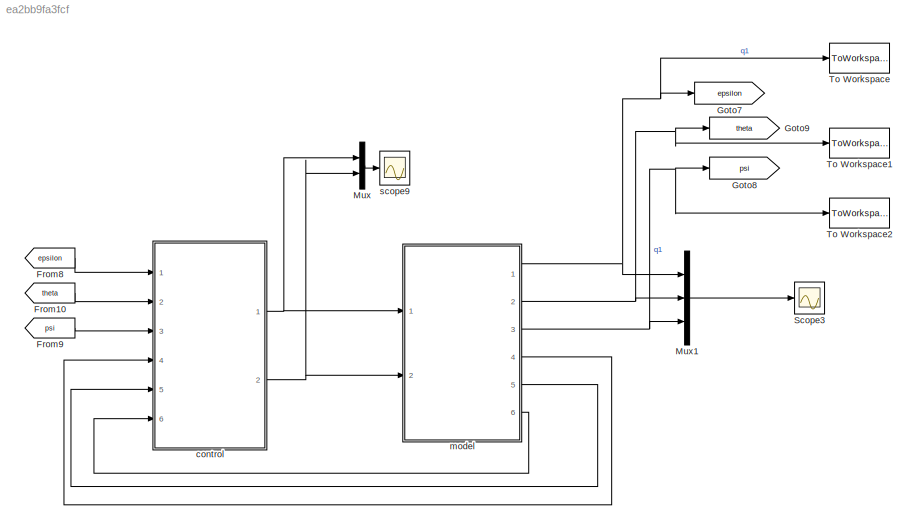
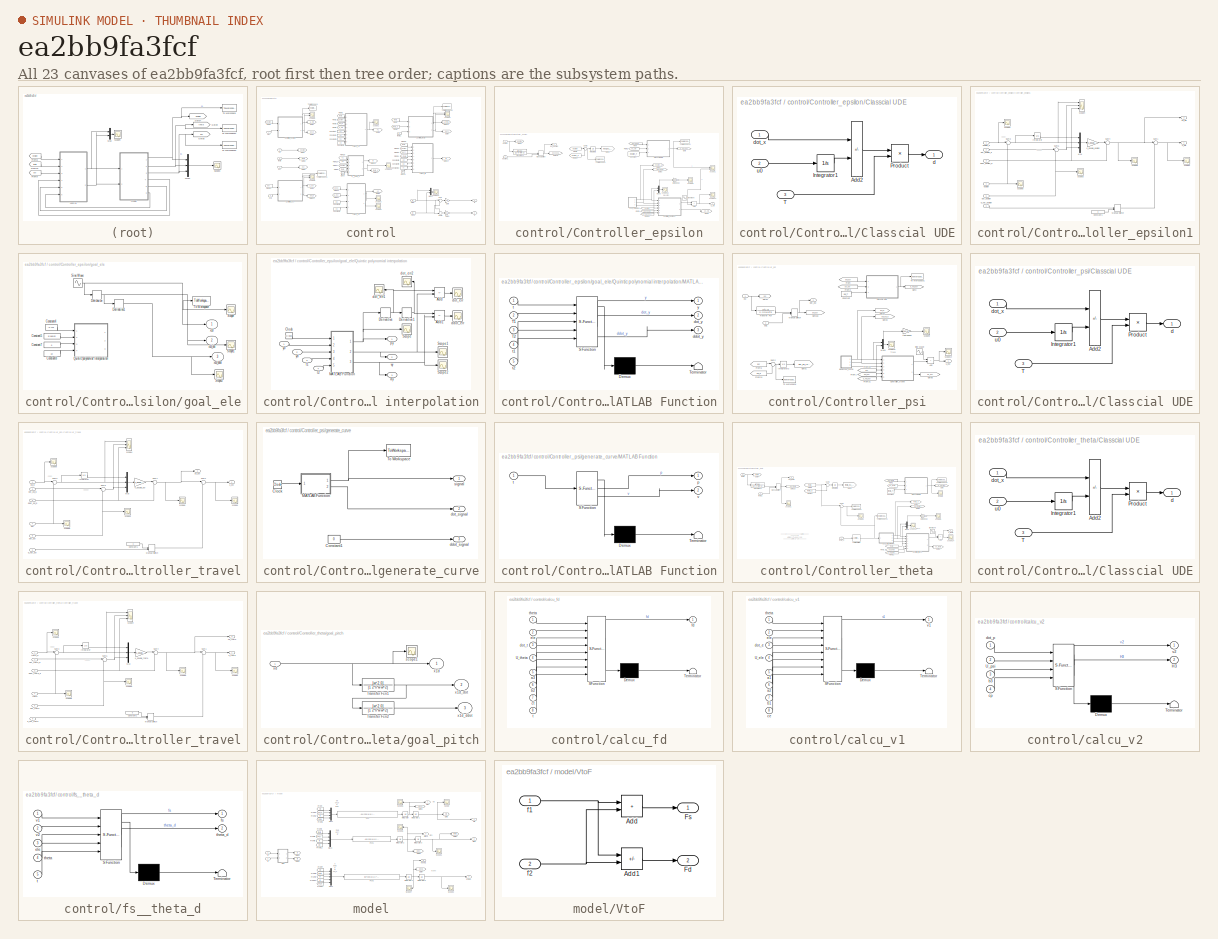
[diagram: thumbnail index - all 23 canvases of the model, root first then tree order]
MODEL slx_ea2bb9fa3fcf
KIND model
CONFIG AbsTol = auto
CONFIG EnableMultiTasking = off
CONFIG FixedStep = 0.005
CONFIG MaxStep = auto
CONFIG MinStep = auto
CONFIG RelTol = 1e-3
CONFIG SampleTimeConstraint = Unconstrained
CONFIG SolverName = ode3
CONFIG StartTime = 0.0
CONFIG StopFcn = %save('data.mat','ans_eps','ans_eps_d','ans_psi','ans_psi_d','ans_theta','ans_theta_d','u_ele','u_psi','u_theta','dhat_ele','dhat_psi','dhat_theta')
CONFIG StopTime = 50
BLOCK [From] From10
  GotoTag = theta
BLOCK [From] From8
  GotoTag = epsilon
BLOCK [From] From9
  GotoTag = psi
BLOCK [Goto] Goto7
  GotoTag = epsilon
BLOCK [Goto] Goto8
  GotoTag = psi
BLOCK [Goto] Goto9
  GotoTag = theta
BLOCK [Mux] Mux
  DisplayOption = bar
  Inputs = 2
  Ports = [2, 1]
BLOCK [Mux] Mux1
  DisplayOption = bar
  Inputs = 3
  Ports = [3, 1]
BLOCK [Scope] Scope3
  Floating = off
  NumInputPorts = 1
  Ports = [1]
  ScopeSpecificationString = Simulink.scopes.TimeScopeBlockCfg('CurrentConfiguration', extmgr.ConfigurationSet(extmgr.Configuration('Core','General UI',true),extmgr.Configuration('Core','Source UI',true),extmgr.Configuration('Sources','WiredSimulink',true,'DataLoggingVariableName','q','DataLoggingSaveFormat','Array','DataLoggingDecimation','1','DataLoggingDecimateData',true,'DataLogging',true),extmgr.Configuration('Visuals','...<+1801ch>
BLOCK [ToWorkspace] To Workspace
  FixptAsFi = on
  MaxDataPoints = inf
  Ports = [1]
  SampleTime = -1
  Save2DSignal = 2-D array (concatenate along first dimension)
  SaveFormat = Structure With Time
  VariableName = ans_eps
BLOCK [ToWorkspace] To Workspace1
  FixptAsFi = on
  MaxDataPoints = inf
  Ports = [1]
  SampleTime = -1
  Save2DSignal = 2-D array (concatenate along first dimension)
  VariableName = ans_theta
BLOCK [ToWorkspace] To Workspace2
  FixptAsFi = on
  MaxDataPoints = inf
  Ports = [1]
  SampleTime = -1
  Save2DSignal = 2-D array (concatenate along first dimension)
  VariableName = ans_psi
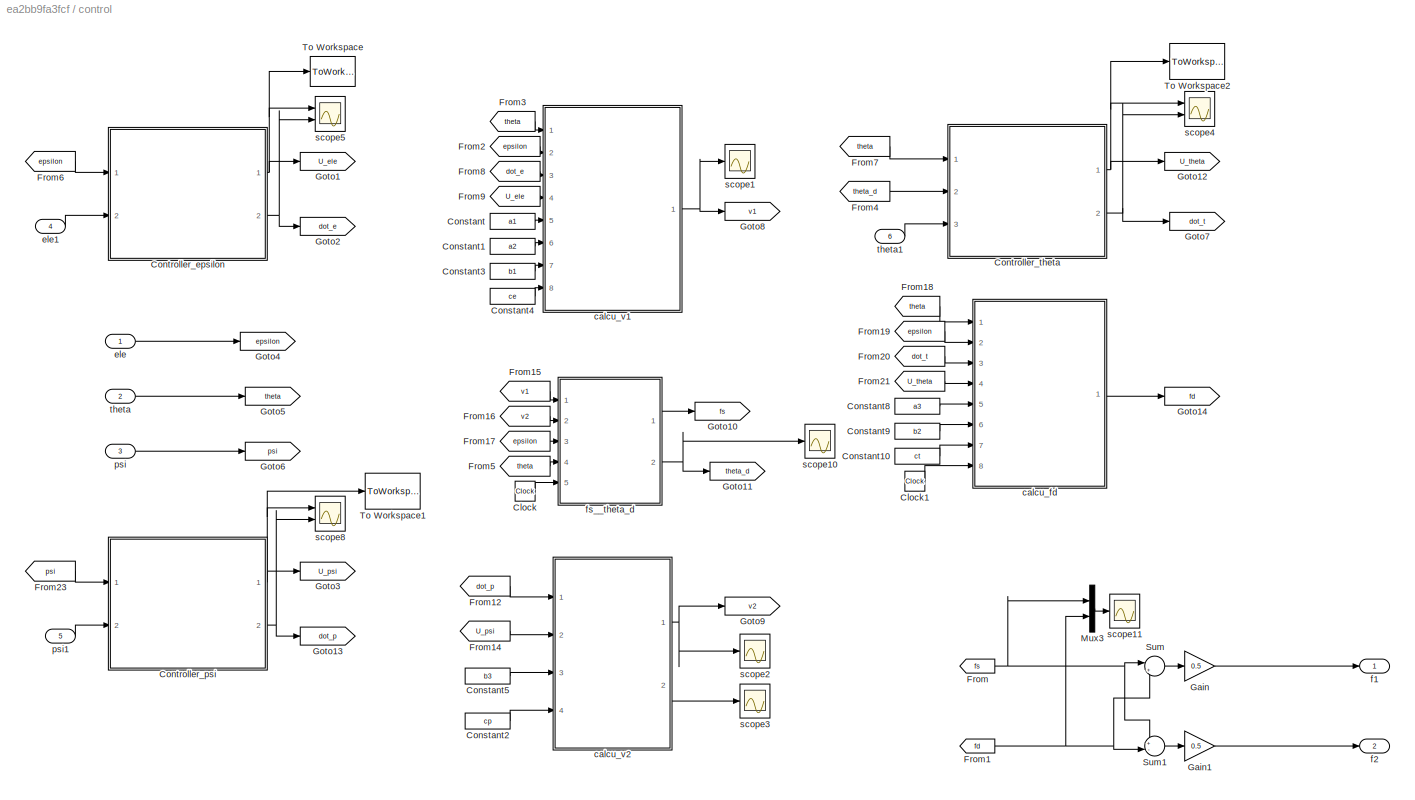
BLOCK [SubSystem] control
  Ports = [6, 2]
  RequestExecContextInheritance = off
BLOCK [Clock] control/Clock
  Decimation = 30
BLOCK [Clock] control/Clock1
  Decimation = 30
BLOCK [Constant] control/Constant
  Value = a1
BLOCK [Constant] control/Constant1
  Value = a2
BLOCK [Constant] control/Constant10
  Value = ct
BLOCK [Constant] control/Constant2
  Value = cp
BLOCK [Constant] control/Constant3
  Value = b1
BLOCK [Constant] control/Constant4
  Value = ce
BLOCK [Constant] control/Constant5
  Value = b3
BLOCK [Constant] control/Constant8
  Value = a3
BLOCK [Constant] control/Constant9
  Value = b2
BLOCK [SubSystem] control/Controller_epsilon
  Ports = [2, 2]
  RequestExecContextInheritance = off
BLOCK [Sum] control/Controller_epsilon/Add
  IconShape = rectangular
  Ports = [2, 1]
BLOCK [SubSystem] control/Controller_epsilon/Classcial UDE
  Ports = [3, 1]
  RequestExecContextInheritance = off
BLOCK [Sum] control/Controller_epsilon/Classcial UDE/Add2
  IconShape = rectangular
  Inputs = +-
  Ports = [2, 1]
BLOCK [Integrator] control/Controller_epsilon/Classcial UDE/Integrator1
  Ports = [1, 1]
BLOCK [Product] control/Controller_epsilon/Classcial UDE/Product
  Inputs = */
  Ports = [2, 1]
BLOCK [Inport] control/Controller_epsilon/Classcial UDE/T
  Port = 3
BLOCK [Outport] control/Controller_epsilon/Classcial UDE/d
  VectorParamsAs1DForOutWhenUnconnected = off
BLOCK [Inport] control/Controller_epsilon/Classcial UDE/dot_x
BLOCK [Inport] control/Controller_epsilon/Classcial UDE/u0
  Port = 2
BLOCK [Constant] control/Controller_epsilon/Constant
  SampleTime = -1
  Value = epsilon_T
  VectorParams1D = off
BLOCK [SubSystem] control/Controller_epsilon/Controller_epsilon1
  Ports = [6, 2]
  RequestExecContextInheritance = off
BLOCK [Constant] control/Controller_epsilon/Controller_epsilon1/Constant1
  Value = 0
BLOCK [Integrator] control/Controller_epsilon/Controller_epsilon1/Integrator
  Ports = [1, 1]
BLOCK [ManualSwitch] control/Controller_epsilon/Controller_epsilon1/Manual Switch
BLOCK [Mux] control/Controller_epsilon/Controller_epsilon1/Mux
  DisplayOption = bar
  Inputs = 3
  Ports = [3, 1]
BLOCK [Sum] control/Controller_epsilon/Controller_epsilon1/Sum1
  Inputs = |+-
  Ports = [2, 1]
BLOCK [Sum] control/Controller_epsilon/Controller_epsilon1/Sum3
  Inputs = |+-
  Ports = [2, 1]
BLOCK [Sum] control/Controller_epsilon/Controller_epsilon1/Sum4
  Inputs = |++
  Ports = [2, 1]
BLOCK [Sum] control/Controller_epsilon/Controller_epsilon1/Sum6
  Inputs = |+-
  Ports = [2, 1]
BLOCK [Inport] control/Controller_epsilon/Controller_epsilon1/d_hat_epsilon
  Port = 6
BLOCK [Inport] control/Controller_epsilon/Controller_epsilon1/ddot_epsilon_d
  Port = 3
BLOCK [Inport] control/Controller_epsilon/Controller_epsilon1/dot_epsilon
  Port = 5
BLOCK [Inport] control/Controller_epsilon/Controller_epsilon1/dot_epsilon_d
  Port = 2
BLOCK [Inport] control/Controller_epsilon/Controller_epsilon1/epsilon
  Port = 4
BLOCK [Inport] control/Controller_epsilon/Controller_epsilon1/epsilon_d
BLOCK [Gain] control/Controller_epsilon/Controller_epsilon1/k_double_epsilon
  Gain = k_double_epsilon
  Multiplication = Matrix(K*u)
BLOCK [Scope] control/Controller_epsilon/Controller_epsilon1/scope1
  Floating = off
  NumInputPorts = 1
  Ports = [1]
  ScopeSpecificationString = Simulink.scopes.TimeScopeBlockCfg('CurrentConfiguration', extmgr.ConfigurationSet(extmgr.Configuration('Core','General UI',true,'FigureColor',[1 1 1]),extmgr.Configuration('Core','Source UI',true),extmgr.Configuration('Sources','WiredSimulink',true,'DataLoggingVariableName','non2','DataLoggingSaveFormat','StructureWithTime','DataLoggingDecimation','1','DataLoggingDecimateData',true),extmgr.Configu...<+2930ch>
BLOCK [Scope] control/Controller_epsilon/Controller_epsilon1/scope3
  Floating = off
  NumInputPorts = 1
  Ports = [1]
  ScopeSpecificationString = Simulink.scopes.TimeScopeBlockCfg('CurrentConfiguration', extmgr.ConfigurationSet(extmgr.Configuration('Core','General UI',true),extmgr.Configuration('Core','Source UI',true),extmgr.Configuration('Sources','WiredSimulink',true,'DataLoggingVariableName','ScopeData4','DataLoggingSaveFormat','StructureWithTime','DataLoggingDecimation','1','DataLoggingDecimateData',true),extmgr.Configuration('Visuals'...<+1603ch>
BLOCK [Scope] control/Controller_epsilon/Controller_epsilon1/scope4
  Floating = off
  NumInputPorts = 3
  Ports = [3]
  ScopeSpecificationString = Simulink.scopes.TimeScopeBlockCfg('CurrentConfiguration', extmgr.ConfigurationSet(extmgr.Configuration('Core','General UI',true),extmgr.Configuration('Core','Source UI',true),extmgr.Configuration('Sources','WiredSimulink',true,'DataLoggingVariableName','ScopeData5','DataLoggingSaveFormat','StructureWithTime','DataLoggingDecimation','1','DataLoggingDecimateData',true),extmgr.Configuration('Visuals'...<+3022ch>
BLOCK [Scope] control/Controller_epsilon/Controller_epsilon1/scope6
  Floating = off
  NumInputPorts = 1
  Ports = [1]
  ScopeSpecificationString = Simulink.scopes.TimeScopeBlockCfg('CurrentConfiguration', extmgr.ConfigurationSet(extmgr.Configuration('Core','General UI',true,'FigureColor',[1 1 1]),extmgr.Configuration('Core','Source UI',true),extmgr.Configuration('Sources','WiredSimulink',true,'DataLoggingVariableName','non','DataLoggingSaveFormat','StructureWithTime','DataLoggingDecimation','1','DataLoggingDecimateData',true),extmgr.Configur...<+2562ch>  <repeated x3 — deduplicated; at blocks: scope6>
BLOCK [Scope] control/Controller_epsilon/Controller_epsilon1/scope8
  Floating = off
  NumInputPorts = 1
  Ports = [1]
  ScopeSpecificationString = Simulink.scopes.TimeScopeBlockCfg('CurrentConfiguration', extmgr.ConfigurationSet(extmgr.Configuration('Core','General UI',true),extmgr.Configuration('Core','Source UI',true),extmgr.Configuration('Sources','WiredSimulink',true,'DataLoggingVariableName','ScopeData6','DataLoggingSaveFormat','StructureWithTime','DataLoggingDecimation','1','DataLoggingDecimateData',true),extmgr.Configuration('Visuals'...<+894ch>  <repeated x3 — deduplicated; at blocks: scope8>
BLOCK [Scope] control/Controller_epsilon/Controller_epsilon1/scope9
  Floating = off
  NumInputPorts = 1
  Ports = [1]
  ScopeSpecificationString = Simulink.scopes.TimeScopeBlockCfg('CurrentConfiguration', extmgr.ConfigurationSet(extmgr.Configuration('Core','General UI',true),extmgr.Configuration('Core','Source UI',true),extmgr.Configuration('Sources','WiredSimulink',true,'DataLoggingVariableName','ScopeData7','DataLoggingSaveFormat','StructureWithTime','DataLoggingDecimation','1','DataLoggingDecimateData',true),extmgr.Configuration('Visuals'...<+1602ch>
BLOCK [Outport] control/Controller_epsilon/Controller_epsilon1/u0_ele
  Port = 2
  VectorParamsAs1DForOutWhenUnconnected = off
BLOCK [Outport] control/Controller_epsilon/Controller_epsilon1/u_ele
  VectorParamsAs1DForOutWhenUnconnected = off
BLOCK [From] control/Controller_epsilon/From
  GotoTag = dot_epsilon
BLOCK [From] control/Controller_epsilon/From1
  GotoTag = dot_epsilon
BLOCK [From] control/Controller_epsilon/From2
  GotoTag = u0_ele
BLOCK [From] control/Controller_epsilon/From23
  GotoTag = epsilon
BLOCK [From] control/Controller_epsilon/From24
  GotoTag = epsilon_d
BLOCK [From] control/Controller_epsilon/From31
  GotoTag = d_hat_epsilon
BLOCK [From] control/Controller_epsilon/From6
  GotoTag = epsilon
BLOCK [Goto] control/Controller_epsilon/Goto
  GotoTag = d_hat_epsilon
BLOCK [Goto] control/Controller_epsilon/Goto1
  GotoTag = epsil_e1_integral
BLOCK [Goto] control/Controller_epsilon/Goto18
  GotoTag = dot_epsilon
BLOCK [Goto] control/Controller_epsilon/Goto2
  GotoTag = epsilon_d
BLOCK [Goto] control/Controller_epsilon/Goto3
  GotoTag = dot_epsilon_d
BLOCK [Goto] control/Controller_epsilon/Goto4
  GotoTag = epsilon
BLOCK [Goto] control/Controller_epsilon/Goto5
  GotoTag = u0_ele
BLOCK [Integrator] control/Controller_epsilon/Integrator3
  Ports = [1, 1]
BLOCK [ManualSwitch] control/Controller_epsilon/Manual Switch
  CurrentSetting = 0
BLOCK [Mux] control/Controller_epsilon/Mux5
  DisplayOption = bar
  Inputs = 2
  Ports = [2, 1]
BLOCK [Sin] control/Controller_epsilon/Sine Wave
  Amplitude = 0.05
  Bias = 0.1
  Frequency = 0.5
  Ports = [0, 1]
  SampleTime = 0
BLOCK [Sum] control/Controller_epsilon/Sum2
  Inputs = |+-
  Ports = [2, 1]
BLOCK [ToWorkspace] control/Controller_epsilon/To Workspace
  FixptAsFi = on
  MaxDataPoints = inf
  Ports = [1]
  SampleTime = -1
  SaveFormat = Timeseries
  VariableName = delta_ans_eps
BLOCK [ToWorkspace] control/Controller_epsilon/To Workspace1
  FixptAsFi = on
  MaxDataPoints = inf
  Ports = [1]
  SampleTime = -1
  Save2DSignal = 2-D array (concatenate along first dimension)
  VariableName = dhat_ele
BLOCK [TransferFcn] control/Controller_epsilon/Transfer Fcn
  Denominator = [1 2*n*w w^2]
  Numerator = [w^2 0]
BLOCK [Outport] control/Controller_epsilon/U_ele
  VectorParamsAs1DForOutWhenUnconnected = off
BLOCK [Outport] control/Controller_epsilon/dot_epsilon
  Port = 2
  VectorParamsAs1DForOutWhenUnconnected = off
BLOCK [Inport] control/Controller_epsilon/epsilon
BLOCK [Inport] control/Controller_epsilon/epsilon1
  Port = 2
BLOCK [SubSystem] control/Controller_epsilon/goal_ele
  Ports = [0, 3]
  RequestExecContextInheritance = off
BLOCK [Constant] control/Controller_epsilon/goal_ele/Constant4
  SampleTime = -1
  Value = -0.713
  VectorParams1D = off
BLOCK [Constant] control/Controller_epsilon/goal_ele/Constant5
  SampleTime = -1
  Value = 5/180*pi
  VectorParams1D = off
BLOCK [Constant] control/Controller_epsilon/goal_ele/Constant7
  SampleTime = -1
  Value = 0
  VectorParams1D = off
BLOCK [Constant] control/Controller_epsilon/goal_ele/Constant8
  SampleTime = -1
  Value = 10
  VectorParams1D = off
BLOCK [Derivative] control/Controller_epsilon/goal_ele/Derivative
BLOCK [Derivative] control/Controller_epsilon/goal_ele/Derivative1
BLOCK [SubSystem] control/Controller_epsilon/goal_ele/Quintic polynomial interpolation
  Ports = [4, 3]
  RequestExecContextInheritance = off
BLOCK [Sum] control/Controller_epsilon/goal_ele/Quintic polynomial interpolation/Add
  IconShape = rectangular
  Inputs = +-
  Ports = [2, 1]
BLOCK [Sum] control/Controller_epsilon/goal_ele/Quintic polynomial interpolation/Add1
  IconShape = rectangular
  Inputs = +-
  Ports = [2, 1]
BLOCK [Clock] control/Controller_epsilon/goal_ele/Quintic polynomial interpolation/Clock
BLOCK [Derivative] control/Controller_epsilon/goal_ele/Quintic polynomial interpolation/Derivative
BLOCK [Derivative] control/Controller_epsilon/goal_ele/Quintic polynomial interpolation/Derivative1
BLOCK [SubSystem] control/Controller_epsilon/goal_ele/Quintic polynomial interpolation/MATLAB Function
  ErrorFcn = Stateflow.Translate.translate
  PermitHierarchicalResolution = ExplicitOnly
  Ports = [5, 3]
  RequestExecContextInheritance = off
  SFBlockType = MATLAB Function
  TreatAsAtomicUnit = on
BLOCK [Demux] control/Controller_epsilon/goal_ele/Quintic polynomial interpolation/MATLAB Function/ Demux 
  Outputs = 1
  Ports = [1, 1]
BLOCK [S-Function] control/Controller_epsilon/goal_ele/Quintic polynomial interpolation/MATLAB Function/ SFunction 
  EnableBusSupport = on
  FunctionName = sf_sfun
  PortCounts = [5 4]
  Ports = [5, 4]
  SFcnIsStateOwnerBlock = off
  SFunctionDeploymentMode = off
  Tag = Stateflow S-Function 10
BLOCK [Terminator] control/Controller_epsilon/goal_ele/Quintic polynomial interpolation/MATLAB Function/ Terminator 
BLOCK [Inport] control/Controller_epsilon/goal_ele/Quintic polynomial interpolation/MATLAB Function/T1
  Port = 2
BLOCK [Inport] control/Controller_epsilon/goal_ele/Quintic polynomial interpolation/MATLAB Function/T2
  Port = 3
BLOCK [Outport] control/Controller_epsilon/goal_ele/Quintic polynomial interpolation/MATLAB Function/ddot_y
  Port = 3
BLOCK [Outport] control/Controller_epsilon/goal_ele/Quintic polynomial interpolation/MATLAB Function/dot_y
  Port = 2
BLOCK [Inport] control/Controller_epsilon/goal_ele/Quintic polynomial interpolation/MATLAB Function/t
BLOCK [Inport] control/Controller_epsilon/goal_ele/Quintic polynomial interpolation/MATLAB Function/t1
  Port = 4
BLOCK [Inport] control/Controller_epsilon/goal_ele/Quintic polynomial interpolation/MATLAB Function/t2
  Port = 5
BLOCK [Outport] control/Controller_epsilon/goal_ele/Quintic polynomial interpolation/MATLAB Function/y
  VectorParamsAs1DForOutWhenUnconnected = off
BLOCK [Scope] control/Controller_epsilon/goal_ele/Quintic polynomial interpolation/Scope
  Floating = off
  NumInputPorts = 1
  Ports = [1]
  ScopeSpecificationString = Simulink.scopes.TimeScopeBlockCfg('CurrentConfiguration', extmgr.ConfigurationSet(extmgr.Configuration('Core','General UI',true),extmgr.Configuration('Core','Source UI',true),extmgr.Configuration('Sources','WiredSimulink',true,'DataLoggingVariableName','ScopeData2'),extmgr.Configuration('Visuals','Time Domain',true,'SerializedDisplays',{struct('MinYLimReal','0.5','MaxYLimReal','5.5','YLabelReal','...<+1420ch>
BLOCK [Scope] control/Controller_epsilon/goal_ele/Quintic polynomial interpolation/Scope1
  Floating = off
  NumInputPorts = 1
  Ports = [1]
  ScopeSpecificationString = Simulink.scopes.TimeScopeBlockCfg('CurrentConfiguration', extmgr.ConfigurationSet(extmgr.Configuration('Core','General UI',true),extmgr.Configuration('Core','Source UI',true),extmgr.Configuration('Sources','WiredSimulink',true,'DataLoggingVariableName','ScopeData2'),extmgr.Configuration('Visuals','Time Domain',true,'SerializedDisplays',{struct('MinYLimReal','-0.15625','MaxYLimReal','1.40625','YLab...<+1457ch>
BLOCK [Scope] control/Controller_epsilon/goal_ele/Quintic polynomial interpolation/Scope2
  Floating = off
  NumInputPorts = 1
  Ports = [1]
  ScopeSpecificationString = Simulink.scopes.TimeScopeBlockCfg('CurrentConfiguration', extmgr.ConfigurationSet(extmgr.Configuration('Core','General UI',true),extmgr.Configuration('Core','Source UI',true),extmgr.Configuration('Sources','WiredSimulink',true,'DataLoggingVariableName','ScopeData3'),extmgr.Configuration('Visuals','Time Domain',true,'SerializedDisplays',{struct('MinYLimReal','-0.80187','MaxYLimReal','0.80187','YLab...<+1459ch>
BLOCK [Outport] control/Controller_epsilon/goal_ele/Quintic polynomial interpolation/ay
  Port = 3
  VectorParamsAs1DForOutWhenUnconnected = off
BLOCK [Scope] control/Controller_epsilon/goal_ele/Quintic polynomial interpolation/ddot_err
  Floating = off
  NumInputPorts = 1
  Ports = [1]
  ScopeSpecificationString = Simulink.scopes.TimeScopeBlockCfg('CurrentConfiguration', extmgr.ConfigurationSet(extmgr.Configuration('Core','General UI',true),extmgr.Configuration('Core','Source UI',true),extmgr.Configuration('Sources','WiredSimulink',true,'DataLoggingVariableName','ScopeData5'),extmgr.Configuration('Visuals','Time Domain',true,'SerializedDisplays',{struct('MinYLimReal','-0.00658','MaxYLimReal','0.00382','YLab...<+1441ch>
BLOCK [Scope] control/Controller_epsilon/goal_ele/Quintic polynomial interpolation/dot_err
  Floating = off
  NumInputPorts = 1
  Ports = [1]
  ScopeSpecificationString = Simulink.scopes.TimeScopeBlockCfg('CurrentConfiguration', extmgr.ConfigurationSet(extmgr.Configuration('Core','General UI',true),extmgr.Configuration('Core','Source UI',true),extmgr.Configuration('Sources','WiredSimulink',true,'DataLoggingVariableName','ScopeData4'),extmgr.Configuration('Visuals','Time Domain',true,'SerializedDisplays',{struct('MinYLimReal','-0.002','MaxYLimReal','0.002','YLabelRe...<+1428ch>
BLOCK [Scope] control/Controller_epsilon/goal_ele/Quintic polynomial interpolation/dot_err1
  Floating = off
  NameLocation = top
  NumInputPorts = 1
  Ports = [1]
  ScopeSpecificationString = Simulink.scopes.TimeScopeBlockCfg('CurrentConfiguration', extmgr.ConfigurationSet(extmgr.Configuration('Core','General UI',true),extmgr.Configuration('Core','Source UI',true),extmgr.Configuration('Sources','WiredSimulink',true,'DataLoggingVariableName','ScopeData6'),extmgr.Configuration('Visuals','Time Domain',true,'SerializedDisplays',{struct('MinYLimReal','-0.1309','MaxYLimReal','1.1781','YLabel...<+1438ch>
BLOCK [Scope] control/Controller_epsilon/goal_ele/Quintic polynomial interpolation/dot_err2
  Floating = off
  NameLocation = top
  NumInputPorts = 1
  Ports = [1]
  ScopeSpecificationString = Simulink.scopes.TimeScopeBlockCfg('CurrentConfiguration', extmgr.ConfigurationSet(extmgr.Configuration('Core','General UI',true),extmgr.Configuration('Core','Source UI',true),extmgr.Configuration('Sources','WiredSimulink',true,'DataLoggingVariableName','ScopeData7'),extmgr.Configuration('Visuals','Time Domain',true,'SerializedDisplays',{struct('MinYLimReal','-0.68539','MaxYLimReal','0.68539','YLab...<+1446ch>
BLOCK [Outport] control/Controller_epsilon/goal_ele/Quintic polynomial interpolation/py
  VectorParamsAs1DForOutWhenUnconnected = off
BLOCK [Inport] control/Controller_epsilon/goal_ele/Quintic polynomial interpolation/t1
  Port = 3
BLOCK [Inport] control/Controller_epsilon/goal_ele/Quintic polynomial interpolation/t2
  Port = 4
BLOCK [Outport] control/Controller_epsilon/goal_ele/Quintic polynomial interpolation/vy
  Port = 2
  VectorParamsAs1DForOutWhenUnconnected = off
BLOCK [Inport] control/Controller_epsilon/goal_ele/Quintic polynomial interpolation/y0
BLOCK [Inport] control/Controller_epsilon/goal_ele/Quintic polynomial interpolation/yd
  Port = 2
BLOCK [Scope] control/Controller_epsilon/goal_ele/Scope
  Floating = off
  NumInputPorts = 1
  Ports = [1]
  ScopeSpecificationString = Simulink.scopes.TimeScopeBlockCfg('CurrentConfiguration', extmgr.ConfigurationSet(extmgr.Configuration('Core','General UI',true),extmgr.Configuration('Core','Source UI',true),extmgr.Configuration('Sources','WiredSimulink',true,'DataLoggingVariableName','ScopeData3','DataLoggingSaveFormat','StructureWithTime','DataLoggingDecimation','1','DataLoggingDecimateData',true),extmgr.Configuration('Visuals'...<+1679ch>
BLOCK [Scope] control/Controller_epsilon/goal_ele/Scope1
  Floating = off
  NumInputPorts = 1
  Ports = [1]
  ScopeSpecificationString = Simulink.scopes.TimeScopeBlockCfg('CurrentConfiguration', extmgr.ConfigurationSet(extmgr.Configuration('Core','General UI',true),extmgr.Configuration('Core','Source UI',true),extmgr.Configuration('Sources','WiredSimulink',true,'DataLoggingVariableName','ScopeData8','DataLoggingSaveFormat','StructureWithTime','DataLoggingDecimation','1','DataLoggingDecimateData',true),extmgr.Configuration('Visuals'...<+877ch>
BLOCK [Scope] control/Controller_epsilon/goal_ele/Scope2
  Floating = off
  NumInputPorts = 1
  Ports = [1]
  ScopeSpecificationString = Simulink.scopes.TimeScopeBlockCfg('CurrentConfiguration', extmgr.ConfigurationSet(extmgr.Configuration('Core','General UI',true),extmgr.Configuration('Core','Source UI',true),extmgr.Configuration('Sources','WiredSimulink',true,'DataLoggingVariableName','ScopeData9','DataLoggingSaveFormat','StructureWithTime','DataLoggingDecimation','1','DataLoggingDecimateData',true),extmgr.Configuration('Visuals'...<+877ch>
BLOCK [Sin] control/Controller_epsilon/goal_ele/Sine Wave
  Amplitude = -2*pi/180
  Bias = 2*pi/180
  Frequency = 0.4*pi
  Phase = pi/2
  Ports = [0, 1]
  SampleTime = 0
BLOCK [ToWorkspace] control/Controller_epsilon/goal_ele/To Workspace
  FixptAsFi = on
  MaxDataPoints = inf
  Ports = [1]
  SampleTime = -1
  Save2DSignal = 2-D array (concatenate along first dimension)
  VariableName = ans_eps_d
BLOCK [Outport] control/Controller_epsilon/goal_ele/x1d
  VectorParamsAs1DForOutWhenUnconnected = off
BLOCK [Outport] control/Controller_epsilon/goal_ele/x1d_ddot
  Port = 3
  VectorParamsAs1DForOutWhenUnconnected = off
BLOCK [Outport] control/Controller_epsilon/goal_ele/x1d_dot
  Port = 2
  VectorParamsAs1DForOutWhenUnconnected = off
BLOCK [Gain] control/Controller_epsilon/radtodeg2
  Gain = 180/pi
BLOCK [Scope] control/Controller_epsilon/scope1
  Floating = off
  NumInputPorts = 2
  Ports = [2]
  ScopeSpecificationString = Simulink.scopes.TimeScopeBlockCfg('CurrentConfiguration', extmgr.ConfigurationSet(extmgr.Configuration('Core','General UI',true),extmgr.Configuration('Core','Source UI',true),extmgr.Configuration('Sources','WiredSimulink',true,'DataLoggingVariableName','ScopeData3','DataLoggingSaveFormat','StructureWithTime','DataLoggingDecimation','1','DataLoggingDecimateData',true),extmgr.Configuration('Visuals'...<+1696ch>
BLOCK [Scope] control/Controller_epsilon/scope12
  Floating = off
  NumInputPorts = 1
  Ports = [1]
  ScopeSpecificationString = Simulink.scopes.TimeScopeBlockCfg('CurrentConfiguration', extmgr.ConfigurationSet(extmgr.Configuration('Core','General UI',true),extmgr.Configuration('Core','Source UI',true),extmgr.Configuration('Sources','WiredSimulink',true,'DataLoggingVariableName','ScopeData14','DataLoggingSaveFormat','StructureWithTime','DataLoggingDecimation','1','DataLoggingDecimateData',true),extmgr.Configuration('Visuals...<+1677ch>
BLOCK [Scope] control/Controller_epsilon/scope14
  Floating = off
  NumInputPorts = 1
  Ports = [1]
  ScopeSpecificationString = Simulink.scopes.TimeScopeBlockCfg('CurrentConfiguration', extmgr.ConfigurationSet(extmgr.Configuration('Core','General UI',true),extmgr.Configuration('Core','Source UI',true),extmgr.Configuration('Sources','WiredSimulink',true,'DataLoggingVariableName','ScopeData37','DataLoggingSaveFormat','StructureWithTime','DataLoggingDecimation','1','DataLoggingDecimateData',true),extmgr.Configuration('Visuals...<+1686ch>
BLOCK [Scope] control/Controller_epsilon/scope9
  Floating = off
  NumInputPorts = 1
  Ports = [1]
  ScopeSpecificationString = Simulink.scopes.TimeScopeBlockCfg('CurrentConfiguration', extmgr.ConfigurationSet(extmgr.Configuration('Core','General UI',true),extmgr.Configuration('Core','Source UI',true),extmgr.Configuration('Sources','WiredSimulink',true,'DataLoggingVariableName','ScopeData12','DataLoggingSaveFormat','StructureWithTime','DataLoggingDecimation','1','DataLoggingDecimateData',true),extmgr.Configuration('Visuals...<+1728ch>
BLOCK [SubSystem] control/Controller_psi
  Ports = [2, 2]
  RequestExecContextInheritance = off
BLOCK [Sum] control/Controller_psi/Add
  IconShape = rectangular
  Ports = [2, 1]
BLOCK [SubSystem] control/Controller_psi/Classcial UDE
  Ports = [3, 1]
  RequestExecContextInheritance = off
BLOCK [Sum] control/Controller_psi/Classcial UDE/Add2
  IconShape = rectangular
  Inputs = +-
  Ports = [2, 1]
BLOCK [Integrator] control/Controller_psi/Classcial UDE/Integrator1
  Ports = [1, 1]
BLOCK [Product] control/Controller_psi/Classcial UDE/Product
  Inputs = */
  Ports = [2, 1]
BLOCK [Inport] control/Controller_psi/Classcial UDE/T
  Port = 3
BLOCK [Outport] control/Controller_psi/Classcial UDE/d
  VectorParamsAs1DForOutWhenUnconnected = off
BLOCK [Inport] control/Controller_psi/Classcial UDE/dot_x
BLOCK [Inport] control/Controller_psi/Classcial UDE/u0
  Port = 2
BLOCK [Constant] control/Controller_psi/Constant
  SampleTime = -1
  Value = psi_T
  VectorParams1D = off
BLOCK [SubSystem] control/Controller_psi/Controller_travel
  Ports = [6, 2]
  RequestExecContextInheritance = off
BLOCK [Constant] control/Controller_psi/Controller_travel/Constant1
  Value = 0
BLOCK [Integrator] control/Controller_psi/Controller_travel/Integrator
  Ports = [1, 1]
BLOCK [ManualSwitch] control/Controller_psi/Controller_travel/Manual Switch
  CurrentSetting = 0
BLOCK [Mux] control/Controller_psi/Controller_travel/Mux
  DisplayOption = bar
  Inputs = 3
  Ports = [3, 1]
BLOCK [Sum] control/Controller_psi/Controller_travel/Sum1
  Inputs = |+-
  Ports = [2, 1]
BLOCK [Sum] control/Controller_psi/Controller_travel/Sum3
  Inputs = |+-
  Ports = [2, 1]
BLOCK [Sum] control/Controller_psi/Controller_travel/Sum4
  Inputs = |++
  Ports = [2, 1]
BLOCK [Sum] control/Controller_psi/Controller_travel/Sum6
  Inputs = |+-
  Ports = [2, 1]
BLOCK [Inport] control/Controller_psi/Controller_travel/d_hat_psi
  Port = 6
BLOCK [Inport] control/Controller_psi/Controller_travel/ddot_psi_d
  Port = 3
BLOCK [Inport] control/Controller_psi/Controller_travel/dot_psi
  Port = 5
BLOCK [Inport] control/Controller_psi/Controller_travel/dot_psi_d
  Port = 2
BLOCK [Gain] control/Controller_psi/Controller_travel/k_double_psi
  Gain = k_double_psi
  Multiplication = Matrix(K*u)
BLOCK [Inport] control/Controller_psi/Controller_travel/psi
  Port = 4
BLOCK [Inport] control/Controller_psi/Controller_travel/psi_d
BLOCK [Scope] control/Controller_psi/Controller_travel/scope1
  Floating = off
  NumInputPorts = 1
  Ports = [1]
  ScopeSpecificationString = Simulink.scopes.TimeScopeBlockCfg('CurrentConfiguration', extmgr.ConfigurationSet(extmgr.Configuration('Core','General UI',true,'FigureColor',[1 1 1]),extmgr.Configuration('Core','Source UI',true),extmgr.Configuration('Sources','WiredSimulink',true,'DataLoggingVariableName','non2','DataLoggingSaveFormat','StructureWithTime','DataLoggingDecimation','1','DataLoggingDecimateData',true),extmgr.Configu...<+2563ch>
BLOCK [Scope] control/Controller_psi/Controller_travel/scope3
  Floating = off
  NumInputPorts = 1
  Ports = [1]
  ScopeSpecificationString = Simulink.scopes.TimeScopeBlockCfg('CurrentConfiguration', extmgr.ConfigurationSet(extmgr.Configuration('Core','General UI',true),extmgr.Configuration('Core','Source UI',true),extmgr.Configuration('Sources','WiredSimulink',true,'DataLoggingVariableName','ScopeData4','DataLoggingSaveFormat','StructureWithTime','DataLoggingDecimation','1','DataLoggingDecimateData',true),extmgr.Configuration('Visuals'...<+1603ch>
BLOCK [Scope] control/Controller_psi/Controller_travel/scope4
  Floating = off
  NumInputPorts = 3
  Ports = [3]
  ScopeSpecificationString = Simulink.scopes.TimeScopeBlockCfg('CurrentConfiguration', extmgr.ConfigurationSet(extmgr.Configuration('Core','General UI',true),extmgr.Configuration('Core','Source UI',true),extmgr.Configuration('Sources','WiredSimulink',true,'DataLoggingVariableName','ScopeData5','DataLoggingSaveFormat','StructureWithTime','DataLoggingDecimation','1','DataLoggingDecimateData',true),extmgr.Configuration('Visuals'...<+2992ch>
BLOCK [Scope] control/Controller_psi/Controller_travel/scope6
  Floating = off
  NumInputPorts = 1
  Ports = [1]
BLOCK [Scope] control/Controller_psi/Controller_travel/scope8
  Floating = off
  NumInputPorts = 1
  Ports = [1]
BLOCK [Scope] control/Controller_psi/Controller_travel/scope9
  Floating = off
  NumInputPorts = 1
  Ports = [1]
  ScopeSpecificationString = Simulink.scopes.TimeScopeBlockCfg('CurrentConfiguration', extmgr.ConfigurationSet(extmgr.Configuration('Core','General UI',true),extmgr.Configuration('Core','Source UI',true),extmgr.Configuration('Sources','WiredSimulink',true,'DataLoggingVariableName','ScopeData7','DataLoggingSaveFormat','StructureWithTime','DataLoggingDecimation','1','DataLoggingDecimateData',true),extmgr.Configuration('Visuals'...<+1602ch>
BLOCK [Outport] control/Controller_psi/Controller_travel/u0_psi
  Port = 2
  VectorParamsAs1DForOutWhenUnconnected = off
BLOCK [Outport] control/Controller_psi/Controller_travel/u_psi
  VectorParamsAs1DForOutWhenUnconnected = off
BLOCK [From] control/Controller_psi/From
  GotoTag = dot_psi
BLOCK [From] control/Controller_psi/From1
  GotoTag = dot_psi
BLOCK [From] control/Controller_psi/From2
  GotoTag = u0_psi
BLOCK [From] control/Controller_psi/From23
  GotoTag = psi
BLOCK [From] control/Controller_psi/From24
  GotoTag = psi_d
BLOCK [From] control/Controller_psi/From31
  GotoTag = d_hat_psi
BLOCK [From] control/Controller_psi/From6
  GotoTag = psi
BLOCK [Goto] control/Controller_psi/Goto
  GotoTag = d_hat_psi
BLOCK [Goto] control/Controller_psi/Goto1
  GotoTag = psi_e1_integral
BLOCK [Goto] control/Controller_psi/Goto18
  GotoTag = dot_psi
BLOCK [Goto] control/Controller_psi/Goto2
  GotoTag = psi_d
BLOCK [Goto] control/Controller_psi/Goto3
  GotoTag = dot_psi_d
BLOCK [Goto] control/Controller_psi/Goto4
  GotoTag = psi
BLOCK [Goto] control/Controller_psi/Goto5
  GotoTag = u0_psi
BLOCK [Integrator] control/Controller_psi/Integrator3
  Ports = [1, 1]
BLOCK [ManualSwitch] control/Controller_psi/Manual Switch
  CurrentSetting = 0
BLOCK [Mux] control/Controller_psi/Mux5
  DisplayOption = bar
  Inputs = 2
  Ports = [2, 1]
BLOCK [Sin] control/Controller_psi/Sine Wave
  Amplitude = 0.05
  Bias = 0.1
  Frequency = 2
  Ports = [0, 1]
  SampleTime = 0
BLOCK [Sum] control/Controller_psi/Sum2
  Inputs = |+-
  Ports = [2, 1]
BLOCK [ToWorkspace] control/Controller_psi/To Workspace
  FixptAsFi = on
  MaxDataPoints = inf
  Ports = [1]
  SampleTime = -1
  SaveFormat = Timeseries
  VariableName = delta_ans_psi
BLOCK [ToWorkspace] control/Controller_psi/To Workspace1
  FixptAsFi = on
  MaxDataPoints = inf
  Ports = [1]
  SampleTime = -1
  Save2DSignal = 2-D array (concatenate along first dimension)
  VariableName = dhat_psi
BLOCK [TransferFcn] control/Controller_psi/Transfer Fcn
  Denominator = [1 2*n*w w^2]
  Numerator = [w^2 0]
BLOCK [Outport] control/Controller_psi/U_psi
  VectorParamsAs1DForOutWhenUnconnected = off
BLOCK [Outport] control/Controller_psi/dot_psi
  Port = 2
  VectorParamsAs1DForOutWhenUnconnected = off
BLOCK [SubSystem] control/Controller_psi/generate_curve
  Ports = [0, 3]
  RequestExecContextInheritance = off
BLOCK [Clock] control/Controller_psi/generate_curve/Clock
BLOCK [Constant] control/Controller_psi/generate_curve/Constant1
  SampleTime = -1
  Value = 0
  VectorParams1D = off
BLOCK [SubSystem] control/Controller_psi/generate_curve/MATLAB Function
  ErrorFcn = Stateflow.Translate.translate
  PermitHierarchicalResolution = ExplicitOnly
  Ports = [1, 2]
  RequestExecContextInheritance = off
  SFBlockType = MATLAB Function
  TreatAsAtomicUnit = on
BLOCK [Demux] control/Controller_psi/generate_curve/MATLAB Function/ Demux 
  Outputs = 1
  Ports = [1, 1]
BLOCK [S-Function] control/Controller_psi/generate_curve/MATLAB Function/ SFunction 
  EnableBusSupport = on
  FunctionName = sf_sfun
  PortCounts = [1 3]
  Ports = [1, 3]
  SFcnIsStateOwnerBlock = off
  SFunctionDeploymentMode = off
  Tag = Stateflow S-Function 2
BLOCK [Terminator] control/Controller_psi/generate_curve/MATLAB Function/ Terminator 
BLOCK [Outport] control/Controller_psi/generate_curve/MATLAB Function/p
BLOCK [Inport] control/Controller_psi/generate_curve/MATLAB Function/t
BLOCK [Outport] control/Controller_psi/generate_curve/MATLAB Function/v
  Port = 2
BLOCK [ToWorkspace] control/Controller_psi/generate_curve/To Workspace
  FixptAsFi = on
  MaxDataPoints = inf
  Ports = [1]
  SampleTime = -1
  Save2DSignal = 2-D array (concatenate along first dimension)
  VariableName = ans_psi_d
BLOCK [Outport] control/Controller_psi/generate_curve/ddot_signal
  Port = 3
  VectorParamsAs1DForOutWhenUnconnected = off
BLOCK [Outport] control/Controller_psi/generate_curve/dot_signal
  Port = 2
  VectorParamsAs1DForOutWhenUnconnected = off
BLOCK [Outport] control/Controller_psi/generate_curve/signal
  VectorParamsAs1DForOutWhenUnconnected = off
BLOCK [Inport] control/Controller_psi/psi
BLOCK [Inport] control/Controller_psi/psi1
  Port = 2
BLOCK [Gain] control/Controller_psi/radtodeg2
  Gain = 180/pi
BLOCK [Scope] control/Controller_psi/scope12
  Floating = off
  NumInputPorts = 1
  Ports = [1]
  ScopeSpecificationString = Simulink.scopes.TimeScopeBlockCfg('CurrentConfiguration', extmgr.ConfigurationSet(extmgr.Configuration('Core','General UI',true),extmgr.Configuration('Core','Source UI',true),extmgr.Configuration('Sources','WiredSimulink',true,'DataLoggingVariableName','ScopeData14','DataLoggingSaveFormat','StructureWithTime','DataLoggingDecimation','1','DataLoggingDecimateData',true),extmgr.Configuration('Visuals...<+1712ch>
BLOCK [Scope] control/Controller_psi/scope14
  Floating = off
  NumInputPorts = 1
  Ports = [1]
  ScopeSpecificationString = Simulink.scopes.TimeScopeBlockCfg('CurrentConfiguration', extmgr.ConfigurationSet(extmgr.Configuration('Core','General UI',true),extmgr.Configuration('Core','Source UI',true),extmgr.Configuration('Sources','WiredSimulink',true,'DataLoggingVariableName','ScopeData37','DataLoggingSaveFormat','StructureWithTime','DataLoggingDecimation','1','DataLoggingDecimateData',true),extmgr.Configuration('Visuals...<+1603ch>
BLOCK [Scope] control/Controller_psi/scope9
  Floating = off
  NumInputPorts = 1
  Ports = [1]
  ScopeSpecificationString = Simulink.scopes.TimeScopeBlockCfg('CurrentConfiguration', extmgr.ConfigurationSet(extmgr.Configuration('Core','General UI',true),extmgr.Configuration('Core','Source UI',true),extmgr.Configuration('Sources','WiredSimulink',true,'DataLoggingVariableName','ScopeData12','DataLoggingSaveFormat','StructureWithTime','DataLoggingDecimation','1','DataLoggingDecimateData',true),extmgr.Configuration('Visuals...<+1730ch>
BLOCK [SubSystem] control/Controller_theta
  Ports = [3, 2]
  RequestExecContextInheritance = off
BLOCK [Reference] control/Controller_theta/1st-Order  Filter1  REF=powerlib_extras/Control 
Blocks/1st-Order 
Filter
  Ports = [1, 1]
  SourceBlock = powerlib_extras/Control \nBlocks/1st-Order \nFilter
  SourceProductBaseCode = PS
  SourceType = First-Order Filter
BLOCK [Sum] control/Controller_theta/Add
  IconShape = rectangular
  Ports = [2, 1]
BLOCK [SubSystem] control/Controller_theta/Classcial UDE
  Ports = [3, 1]
  RequestExecContextInheritance = off
BLOCK [Sum] control/Controller_theta/Classcial UDE/Add2
  IconShape = rectangular
  Inputs = +-
  Ports = [2, 1]
BLOCK [Integrator] control/Controller_theta/Classcial UDE/Integrator1
  Ports = [1, 1]
BLOCK [Product] control/Controller_theta/Classcial UDE/Product
  Inputs = */
  Ports = [2, 1]
BLOCK [Inport] control/Controller_theta/Classcial UDE/T
  Port = 3
BLOCK [Outport] control/Controller_theta/Classcial UDE/d
  VectorParamsAs1DForOutWhenUnconnected = off
BLOCK [Inport] control/Controller_theta/Classcial UDE/dot_x
BLOCK [Inport] control/Controller_theta/Classcial UDE/u0
  Port = 2
BLOCK [Constant] control/Controller_theta/Constant
  SampleTime = -1
  Value = theta_T
  VectorParams1D = off
BLOCK [SubSystem] control/Controller_theta/Controller_travel
  Ports = [6, 2]
  RequestExecContextInheritance = off
BLOCK [Constant] control/Controller_theta/Controller_travel/Constant1
  Value = 0
BLOCK [Integrator] control/Controller_theta/Controller_travel/Integrator
  Ports = [1, 1]
BLOCK [ManualSwitch] control/Controller_theta/Controller_travel/Manual Switch
  CurrentSetting = 0
BLOCK [Mux] control/Controller_theta/Controller_travel/Mux
  DisplayOption = bar
  Inputs = 3
  Ports = [3, 1]
BLOCK [Sum] control/Controller_theta/Controller_travel/Sum1
  Inputs = |+-
  Ports = [2, 1]
BLOCK [Sum] control/Controller_theta/Controller_travel/Sum3
  Inputs = |+-
  Ports = [2, 1]
BLOCK [Sum] control/Controller_theta/Controller_travel/Sum4
  Inputs = |++
  Ports = [2, 1]
BLOCK [Sum] control/Controller_theta/Controller_travel/Sum6
  Inputs = |+-
  Ports = [2, 1]
BLOCK [Inport] control/Controller_theta/Controller_travel/d_hat_theta
  Port = 6
BLOCK [Inport] control/Controller_theta/Controller_travel/ddot_theta_d
  Port = 3
BLOCK [Inport] control/Controller_theta/Controller_travel/dot_theta
  Port = 5
BLOCK [Inport] control/Controller_theta/Controller_travel/dot_theta_d
  Port = 2
BLOCK [Gain] control/Controller_theta/Controller_travel/k_double_theta
  Gain = k_double_theta
  Multiplication = Matrix(K*u)
BLOCK [Scope] control/Controller_theta/Controller_travel/scope1
  Floating = off
  NumInputPorts = 1
  Ports = [1]
  ScopeSpecificationString = Simulink.scopes.TimeScopeBlockCfg('CurrentConfiguration', extmgr.ConfigurationSet(extmgr.Configuration('Core','General UI',true,'FigureColor',[1 1 1]),extmgr.Configuration('Core','Source UI',true),extmgr.Configuration('Sources','WiredSimulink',true,'DataLoggingVariableName','non2','DataLoggingSaveFormat','StructureWithTime','DataLoggingDecimation','1','DataLoggingDecimateData',true),extmgr.Configu...<+2563ch>
BLOCK [Scope] control/Controller_theta/Controller_travel/scope3
  Floating = off
  NumInputPorts = 1
  Ports = [1]
  ScopeSpecificationString = Simulink.scopes.TimeScopeBlockCfg('CurrentConfiguration', extmgr.ConfigurationSet(extmgr.Configuration('Core','General UI',true),extmgr.Configuration('Core','Source UI',true),extmgr.Configuration('Sources','WiredSimulink',true,'DataLoggingVariableName','ScopeData4','DataLoggingSaveFormat','StructureWithTime','DataLoggingDecimation','1','DataLoggingDecimateData',true),extmgr.Configuration('Visuals'...<+1692ch>
BLOCK [Scope] control/Controller_theta/Controller_travel/scope4
  Floating = off
  NumInputPorts = 3
  Ports = [3]
  ScopeSpecificationString = Simulink.scopes.TimeScopeBlockCfg('CurrentConfiguration', extmgr.ConfigurationSet(extmgr.Configuration('Core','General UI',true),extmgr.Configuration('Core','Source UI',true),extmgr.Configuration('Sources','WiredSimulink',true,'DataLoggingVariableName','ScopeData5','DataLoggingSaveFormat','StructureWithTime','DataLoggingDecimation','1','DataLoggingDecimateData',true),extmgr.Configuration('Visuals'...<+3017ch>
BLOCK [Scope] control/Controller_theta/Controller_travel/scope6
  Floating = off
  NumInputPorts = 1
  Ports = [1]
BLOCK [Scope] control/Controller_theta/Controller_travel/scope8
  Floating = off
  NumInputPorts = 1
  Ports = [1]
BLOCK [Scope] control/Controller_theta/Controller_travel/scope9
  Floating = off
  NumInputPorts = 1
  Ports = [1]
  ScopeSpecificationString = Simulink.scopes.TimeScopeBlockCfg('CurrentConfiguration', extmgr.ConfigurationSet(extmgr.Configuration('Core','General UI',true),extmgr.Configuration('Core','Source UI',true),extmgr.Configuration('Sources','WiredSimulink',true,'DataLoggingVariableName','ScopeData7','DataLoggingSaveFormat','StructureWithTime','DataLoggingDecimation','1','DataLoggingDecimateData',true),extmgr.Configuration('Visuals'...<+1630ch>
BLOCK [Inport] control/Controller_theta/Controller_travel/theta
  Port = 4
BLOCK [Inport] control/Controller_theta/Controller_travel/theta_d
BLOCK [Outport] control/Controller_theta/Controller_travel/u0_theta
  Port = 2
BLOCK [Outport] control/Controller_theta/Controller_travel/u_theta
  VectorParamsAs1DForOutWhenUnconnected = off
BLOCK [From] control/Controller_theta/From
  GotoTag = u0_theta
BLOCK [From] control/Controller_theta/From1
  GotoTag = dot_theta
BLOCK [From] control/Controller_theta/From2
  GotoTag = dot_theta
BLOCK [From] control/Controller_theta/From23
  GotoTag = theta
BLOCK [From] control/Controller_theta/From24
  GotoTag = theta_d
BLOCK [From] control/Controller_theta/From31
  GotoTag = d_hat_theta
BLOCK [From] control/Controller_theta/From6
  GotoTag = theta
BLOCK [Goto] control/Controller_theta/Goto
  GotoTag = d_hat_theta
BLOCK [Goto] control/Controller_theta/Goto1
  GotoTag = theta_e1_integral
BLOCK [Goto] control/Controller_theta/Goto18
  GotoTag = dot_theta
BLOCK [Goto] control/Controller_theta/Goto2
  GotoTag = theta_d
BLOCK [Goto] control/Controller_theta/Goto3
  GotoTag = dot_theta_d
BLOCK [Goto] control/Controller_theta/Goto4
  GotoTag = theta
BLOCK [Goto] control/Controller_theta/Goto5
  GotoTag = u0_theta
BLOCK [Integrator] control/Controller_theta/Integrator3
  Ports = [1, 1]
BLOCK [ManualSwitch] control/Controller_theta/Manual Switch
  CurrentSetting = 0
BLOCK [Mux] control/Controller_theta/Mux5
  DisplayOption = bar
  Inputs = 2
  Ports = [2, 1]
BLOCK [Scope] control/Controller_theta/Scope
  Floating = off
  NumInputPorts = 1
  Ports = [1]
  ScopeSpecificationString = Simulink.scopes.TimeScopeBlockCfg('CurrentConfiguration', extmgr.ConfigurationSet(extmgr.Configuration('Core','General UI',true),extmgr.Configuration('Core','Source UI',true),extmgr.Configuration('Sources','WiredSimulink',true,'DataLoggingVariableName','ScopeData2'),extmgr.Configuration('Visuals','Time Domain',true),extmgr.Configuration('Tools','Plot Navigation',true),extmgr.Configuration('Tools',...<+40ch>
BLOCK [Sin] control/Controller_theta/Sine Wave
  Amplitude = 0.05
  Bias = 0.1
  Frequency = 5
  Ports = [0, 1]
  SampleTime = 0
BLOCK [Sum] control/Controller_theta/Sum1
  Inputs = |+-
  Ports = [2, 1]
BLOCK [Sum] control/Controller_theta/Sum2
  Inputs = |+-
  Ports = [2, 1]
BLOCK [ToWorkspace] control/Controller_theta/To Workspace
  FixptAsFi = on
  MaxDataPoints = inf
  Ports = [1]
  SampleTime = -1
  SaveFormat = Timeseries
  VariableName = delta_ans_theta
BLOCK [ToWorkspace] control/Controller_theta/To Workspace1
  FixptAsFi = on
  MaxDataPoints = inf
  Ports = [1]
  SampleTime = -1
  Save2DSignal = 2-D array (concatenate along first dimension)
  VariableName = ans_theta_d
BLOCK [ToWorkspace] control/Controller_theta/To Workspace2
  FixptAsFi = on
  MaxDataPoints = inf
  Ports = [1]
  SampleTime = -1
  Save2DSignal = 2-D array (concatenate along first dimension)
  VariableName = dhat_theta
BLOCK [TransferFcn] control/Controller_theta/Transfer Fcn
  Denominator = [1 2*n*w w^2]
  Numerator = [w^2 0]
BLOCK [Outport] control/Controller_theta/U_theta
  VectorParamsAs1DForOutWhenUnconnected = off
BLOCK [Outport] control/Controller_theta/dot_theta
  Port = 2
  VectorParamsAs1DForOutWhenUnconnected = off
BLOCK [SubSystem] control/Controller_theta/goal_pitch
  Ports = [1, 3]
  RequestExecContextInheritance = off
BLOCK [TransferFcn] control/Controller_theta/goal_pitch/Transfer Fcn1
  Denominator = [1 2*n*w w^2]
  Numerator = [w^2 0]
BLOCK [TransferFcn] control/Controller_theta/goal_pitch/Transfer Fcn2
  Denominator = [1 2*n*w w^2]
  Numerator = [w^2 0]
BLOCK [Scope] control/Controller_theta/goal_pitch/scope1
  Floating = off
  NumInputPorts = 1
  Ports = [1]
  ScopeSpecificationString = Simulink.scopes.TimeScopeBlockCfg('CurrentConfiguration', extmgr.ConfigurationSet(extmgr.Configuration('Core','General UI',true),extmgr.Configuration('Core','Source UI',true),extmgr.Configuration('Sources','WiredSimulink',true,'DataLoggingVariableName','theta_d_bar','DataLoggingSaveFormat','Array','DataLoggingDecimation','1','DataLoggingDecimateData',true,'DataLogging',true),extmgr.Configuration('...<+1721ch>
BLOCK [Outport] control/Controller_theta/goal_pitch/x1d
  VectorParamsAs1DForOutWhenUnconnected = off
BLOCK [Outport] control/Controller_theta/goal_pitch/x1d_ddot
  Port = 3
  VectorParamsAs1DForOutWhenUnconnected = off
BLOCK [Outport] control/Controller_theta/goal_pitch/x1d_dot
  Port = 2
  VectorParamsAs1DForOutWhenUnconnected = off
BLOCK [Inport] control/Controller_theta/goal_pitch/xd
BLOCK [Gain] control/Controller_theta/radtodeg2
  Gain = 180/pi
BLOCK [Scope] control/Controller_theta/scope1
  Floating = off
  NumInputPorts = 1
  Ports = [1]
  ScopeSpecificationString = Simulink.scopes.TimeScopeBlockCfg('CurrentConfiguration', extmgr.ConfigurationSet(extmgr.Configuration('Core','General UI',true),extmgr.Configuration('Core','Source UI',true),extmgr.Configuration('Sources','WiredSimulink',true,'DataLoggingVariableName','ScopeData1','DataLoggingSaveFormat','StructureWithTime','DataLoggingDecimation','1','DataLoggingDecimateData',true),extmgr.Configuration('Visuals'...<+1599ch>
BLOCK [Scope] control/Controller_theta/scope12
  Floating = off
  NumInputPorts = 1
  Ports = [1]
  ScopeSpecificationString = Simulink.scopes.TimeScopeBlockCfg('CurrentConfiguration', extmgr.ConfigurationSet(extmgr.Configuration('Core','General UI',true),extmgr.Configuration('Core','Source UI',true),extmgr.Configuration('Sources','WiredSimulink',true,'DataLoggingVariableName','ScopeData14','DataLoggingSaveFormat','StructureWithTime','DataLoggingDecimation','1','DataLoggingDecimateData',true),extmgr.Configuration('Visuals...<+1707ch>
BLOCK [Scope] control/Controller_theta/scope14
  Floating = off
  NumInputPorts = 1
  Ports = [1]
  ScopeSpecificationString = Simulink.scopes.TimeScopeBlockCfg('CurrentConfiguration', extmgr.ConfigurationSet(extmgr.Configuration('Core','General UI',true),extmgr.Configuration('Core','Source UI',true),extmgr.Configuration('Sources','WiredSimulink',true,'DataLoggingVariableName','ScopeData37','DataLoggingSaveFormat','StructureWithTime','DataLoggingDecimation','1','DataLoggingDecimateData',true),extmgr.Configuration('Visuals...<+1726ch>
BLOCK [Scope] control/Controller_theta/scope4
  Floating = off
  NumInputPorts = 1
  Ports = [1]
  ScopeSpecificationString = Simulink.scopes.TimeScopeBlockCfg('CurrentConfiguration', extmgr.ConfigurationSet(extmgr.Configuration('Core','General UI',true),extmgr.Configuration('Core','Source UI',true),extmgr.Configuration('Sources','WiredSimulink',true,'DataLoggingVariableName','ScopeData2','DataLoggingSaveFormat','Array','DataLoggingDecimation','1','DataLoggingDecimateData',true),extmgr.Configuration('Visuals','Time Domai...<+1714ch>
BLOCK [Scope] control/Controller_theta/scope9
  Floating = off
  NumInputPorts = 1
  Ports = [1]
  ScopeSpecificationString = Simulink.scopes.TimeScopeBlockCfg('CurrentConfiguration', extmgr.ConfigurationSet(extmgr.Configuration('Core','General UI',true),extmgr.Configuration('Core','Source UI',true),extmgr.Configuration('Sources','WiredSimulink',true,'DataLoggingVariableName','ScopeData12','DataLoggingSaveFormat','StructureWithTime','DataLoggingDecimation','1','DataLoggingDecimateData',true),extmgr.Configuration('Visuals...<+1726ch>
BLOCK [Inport] control/Controller_theta/theta
BLOCK [Inport] control/Controller_theta/theta1
  Port = 3
BLOCK [Inport] control/Controller_theta/theta_d
  Port = 2
BLOCK [From] control/From
  GotoTag = fs
BLOCK [From] control/From1
  GotoTag = fd
BLOCK [From] control/From12
  GotoTag = dot_p
BLOCK [From] control/From14
  GotoTag = U_psi
BLOCK [From] control/From15
  GotoTag = v1
BLOCK [From] control/From16
  GotoTag = v2
BLOCK [From] control/From17
  GotoTag = epsilon
BLOCK [From] control/From18
  GotoTag = theta
BLOCK [From] control/From19
  GotoTag = epsilon
BLOCK [From] control/From2
  GotoTag = epsilon
BLOCK [From] control/From20
  GotoTag = dot_t
BLOCK [From] control/From21
  GotoTag = U_theta
BLOCK [From] control/From23
  GotoTag = psi
BLOCK [From] control/From3
  GotoTag = theta
BLOCK [From] control/From4
  GotoTag = theta_d
BLOCK [From] control/From5
  GotoTag = theta
BLOCK [From] control/From6
  GotoTag = epsilon
BLOCK [From] control/From7
  GotoTag = theta
BLOCK [From] control/From8
  GotoTag = dot_e
BLOCK [From] control/From9
  GotoTag = U_ele
BLOCK [Gain] control/Gain
  Gain = 0.5
BLOCK [Gain] control/Gain1
  Gain = 0.5
BLOCK [Goto] control/Goto1
  GotoTag = U_ele
BLOCK [Goto] control/Goto10
  GotoTag = fs
BLOCK [Goto] control/Goto11
  GotoTag = theta_d
BLOCK [Goto] control/Goto12
  GotoTag = U_theta
BLOCK [Goto] control/Goto13
  GotoTag = dot_p
BLOCK [Goto] control/Goto14
  GotoTag = fd
BLOCK [Goto] control/Goto2
  GotoTag = dot_e
BLOCK [Goto] control/Goto3
  GotoTag = U_psi
BLOCK [Goto] control/Goto4
  GotoTag = epsilon
BLOCK [Goto] control/Goto5
  GotoTag = theta
BLOCK [Goto] control/Goto6
  GotoTag = psi
BLOCK [Goto] control/Goto7
  GotoTag = dot_t
BLOCK [Goto] control/Goto8
  GotoTag = v1
BLOCK [Goto] control/Goto9
  GotoTag = v2
BLOCK [Mux] control/Mux3
  DisplayOption = bar
  Inputs = 2
  Ports = [2, 1]
BLOCK [Sum] control/Sum
  Inputs = |++
  Ports = [2, 1]
BLOCK [Sum] control/Sum1
  Inputs = +-|
  Ports = [2, 1]
BLOCK [ToWorkspace] control/To Workspace
  FixptAsFi = on
  MaxDataPoints = inf
  Ports = [1]
  SampleTime = -1
  Save2DSignal = 2-D array (concatenate along first dimension)
  VariableName = u_ele
BLOCK [ToWorkspace] control/To Workspace1
  FixptAsFi = on
  MaxDataPoints = inf
  Ports = [1]
  SampleTime = -1
  Save2DSignal = 2-D array (concatenate along first dimension)
  VariableName = u_psi
BLOCK [ToWorkspace] control/To Workspace2
  FixptAsFi = on
  MaxDataPoints = inf
  Ports = [1]
  SampleTime = -1
  Save2DSignal = 2-D array (concatenate along first dimension)
  VariableName = u_theta
BLOCK [SubSystem] control/calcu_fd
  ErrorFcn = Stateflow.Translate.translate
  PermitHierarchicalResolution = ExplicitOnly
  Ports = [8, 1]
  RequestExecContextInheritance = off
  SFBlockType = MATLAB Function
  TreatAsAtomicUnit = on
BLOCK [Demux] control/calcu_fd/ Demux 
  Outputs = 1
  Ports = [1, 1]
BLOCK [S-Function] control/calcu_fd/ SFunction 
  EnableBusSupport = on
  FunctionName = sf_sfun
  PortCounts = [8 2]
  Ports = [8, 2]
  SFcnIsStateOwnerBlock = off
  SFunctionDeploymentMode = off
  Tag = Stateflow S-Function 6
BLOCK [Terminator] control/calcu_fd/ Terminator 
BLOCK [Inport] control/calcu_fd/U_theta
  Port = 4
BLOCK [Inport] control/calcu_fd/a3
  Port = 5
BLOCK [Inport] control/calcu_fd/b2
  Port = 6
BLOCK [Inport] control/calcu_fd/ct
  Port = 7
BLOCK [Inport] control/calcu_fd/dot_t
  Port = 3
BLOCK [Inport] control/calcu_fd/ele
  Port = 2
BLOCK [Outport] control/calcu_fd/fd
  VectorParamsAs1DForOutWhenUnconnected = off
BLOCK [Inport] control/calcu_fd/t
  Port = 8
BLOCK [Inport] control/calcu_fd/theta
BLOCK [SubSystem] control/calcu_v1
  ErrorFcn = Stateflow.Translate.translate
  PermitHierarchicalResolution = ExplicitOnly
  Ports = [8, 1]
  RequestExecContextInheritance = off
  SFBlockType = MATLAB Function
  TreatAsAtomicUnit = on
BLOCK [Demux] control/calcu_v1/ Demux 
  Outputs = 1
  Ports = [1, 1]
BLOCK [S-Function] control/calcu_v1/ SFunction 
  EnableBusSupport = on
  FunctionName = sf_sfun
  PortCounts = [8 2]
  Ports = [8, 2]
  SFcnIsStateOwnerBlock = off
  SFunctionDeploymentMode = off
  Tag = Stateflow S-Function 1
BLOCK [Terminator] control/calcu_v1/ Terminator 
BLOCK [Inport] control/calcu_v1/U_ele
  Port = 4
BLOCK [Inport] control/calcu_v1/a1
  Port = 5
BLOCK [Inport] control/calcu_v1/a2
  Port = 6
BLOCK [Inport] control/calcu_v1/b1
  Port = 7
BLOCK [Inport] control/calcu_v1/ce
  Port = 8
BLOCK [Inport] control/calcu_v1/dot_e
  Port = 3
BLOCK [Inport] control/calcu_v1/ele
  Port = 2
BLOCK [Inport] control/calcu_v1/theta
BLOCK [Outport] control/calcu_v1/v1
  VectorParamsAs1DForOutWhenUnconnected = off
BLOCK [SubSystem] control/calcu_v2
  ErrorFcn = Stateflow.Translate.translate
  PermitHierarchicalResolution = ExplicitOnly
  Ports = [4, 2]
  RequestExecContextInheritance = off
  SFBlockType = MATLAB Function
  TreatAsAtomicUnit = on
BLOCK [Demux] control/calcu_v2/ Demux 
  Outputs = 1
  Ports = [1, 1]
BLOCK [S-Function] control/calcu_v2/ SFunction 
  EnableBusSupport = on
  FunctionName = sf_sfun
  PortCounts = [4 3]
  Ports = [4, 3]
  SFcnIsStateOwnerBlock = off
  SFunctionDeploymentMode = off
  Tag = Stateflow S-Function 4
BLOCK [Terminator] control/calcu_v2/ Terminator 
BLOCK [Outport] control/calcu_v2/H3
  Port = 2
  VectorParamsAs1DForOutWhenUnconnected = off
BLOCK [Inport] control/calcu_v2/U_psi
  Port = 2
BLOCK [Inport] control/calcu_v2/b3
  Port = 3
BLOCK [Inport] control/calcu_v2/cp
  Port = 4
BLOCK [Inport] control/calcu_v2/dot_p
BLOCK [Outport] control/calcu_v2/v2
  VectorParamsAs1DForOutWhenUnconnected = off
BLOCK [Inport] control/ele
BLOCK [Inport] control/ele1
  Port = 4
BLOCK [Outport] control/f1
  VectorParamsAs1DForOutWhenUnconnected = off
BLOCK [Outport] control/f2
  Port = 2
  VectorParamsAs1DForOutWhenUnconnected = off
BLOCK [SubSystem] control/fs__theta_d
  ErrorFcn = Stateflow.Translate.translate
  PermitHierarchicalResolution = ExplicitOnly
  Ports = [5, 2]
  RequestExecContextInheritance = off
  SFBlockType = MATLAB Function
  TreatAsAtomicUnit = on
BLOCK [Demux] control/fs__theta_d/ Demux 
  Outputs = 1
  Ports = [1, 1]
BLOCK [S-Function] control/fs__theta_d/ SFunction 
  EnableBusSupport = on
  FunctionName = sf_sfun
  PortCounts = [5 3]
  Ports = [5, 3]
  SFcnIsStateOwnerBlock = off
  SFunctionDeploymentMode = off
  Tag = Stateflow S-Function 5
BLOCK [Terminator] control/fs__theta_d/ Terminator 
BLOCK [Inport] control/fs__theta_d/ele
  Port = 3
BLOCK [Outport] control/fs__theta_d/fs
  VectorParamsAs1DForOutWhenUnconnected = off
BLOCK [Inport] control/fs__theta_d/t
  Port = 5
BLOCK [Inport] control/fs__theta_d/theta
  Port = 4
BLOCK [Outport] control/fs__theta_d/theta_d
  Port = 2
  VectorParamsAs1DForOutWhenUnconnected = off
BLOCK [Inport] control/fs__theta_d/v1
BLOCK [Inport] control/fs__theta_d/v2
  Port = 2
BLOCK [Inport] control/psi
  Port = 3
BLOCK [Inport] control/psi1
  Port = 5
BLOCK [Scope] control/scope1
  Floating = off
  NumInputPorts = 1
  Ports = [1]
  ScopeSpecificationString = Simulink.scopes.TimeScopeBlockCfg('CurrentConfiguration', extmgr.ConfigurationSet(extmgr.Configuration('Core','General UI',true),extmgr.Configuration('Core','Source UI',true),extmgr.Configuration('Sources','WiredSimulink',true,'DataLoggingVariableName','v1','DataLoggingSaveFormat','Array','DataLoggingDecimation','1','DataLoggingDecimateData',true),extmgr.Configuration('Visuals','Time Domain',true,...<+1609ch>
BLOCK [Scope] control/scope10
  Floating = off
  NumInputPorts = 1
  Ports = [1]
  ScopeSpecificationString = Simulink.scopes.TimeScopeBlockCfg('CurrentConfiguration', extmgr.ConfigurationSet(extmgr.Configuration('Core','General UI',true),extmgr.Configuration('Core','Source UI',true),extmgr.Configuration('Sources','WiredSimulink',true,'DataLogging',true,'DataLoggingVariableName','theta_d','DataLoggingSaveFormat','Array','DataLoggingDecimation','1','DataLoggingDecimateData',true),extmgr.Configuration('Visu...<+1706ch>
BLOCK [Scope] control/scope11
  Floating = off
  NumInputPorts = 1
  Ports = [1]
  ScopeSpecificationString = Simulink.scopes.TimeScopeBlockCfg('CurrentConfiguration', extmgr.ConfigurationSet(extmgr.Configuration('Core','General UI',true),extmgr.Configuration('Core','Source UI',true),extmgr.Configuration('Sources','WiredSimulink',true,'DataLoggingVariableName','fsd','DataLoggingSaveFormat','Array','DataLoggingDecimation','1','DataLoggingDecimateData',true,'DataLogging',true),extmgr.Configuration('Visuals'...<+1725ch>
BLOCK [Scope] control/scope2
  Floating = off
  NumInputPorts = 1
  Ports = [1]
  ScopeSpecificationString = Simulink.scopes.TimeScopeBlockCfg('CurrentConfiguration', extmgr.ConfigurationSet(extmgr.Configuration('Core','General UI',true),extmgr.Configuration('Core','Source UI',true),extmgr.Configuration('Sources','WiredSimulink',true,'DataLoggingVariableName','v2','DataLoggingSaveFormat','Array','DataLoggingDecimation','1','DataLoggingDecimateData',true),extmgr.Configuration('Visuals','Time Domain',true,...<+1614ch>
BLOCK [Scope] control/scope3
  Floating = off
  NumInputPorts = 1
  Ports = [1]
  ScopeSpecificationString = Simulink.scopes.TimeScopeBlockCfg('CurrentConfiguration', extmgr.ConfigurationSet(extmgr.Configuration('Core','General UI',true),extmgr.Configuration('Core','Source UI',true),extmgr.Configuration('Sources','WiredSimulink',true,'DataLoggingVariableName','ScopeData1','DataLoggingSaveFormat','StructureWithTime','DataLoggingDecimation','1','DataLoggingDecimateData',true),extmgr.Configuration('Visuals'...<+1603ch>
BLOCK [Scope] control/scope4
  Floating = off
  NumInputPorts = 2
  Ports = [2]
  ScopeSpecificationString = Simulink.scopes.TimeScopeBlockCfg('CurrentConfiguration', extmgr.ConfigurationSet(extmgr.Configuration('Core','General UI',true),extmgr.Configuration('Core','Source UI',true),extmgr.Configuration('Sources','WiredSimulink',true,'DataLoggingVariableName','ScopeData2','DataLoggingSaveFormat','StructureWithTime','DataLoggingDecimation','1','DataLoggingDecimateData',true),extmgr.Configuration('Visuals'...<+2426ch>
BLOCK [Scope] control/scope5
  Floating = off
  NumInputPorts = 2
  Ports = [2]
  ScopeSpecificationString = Simulink.scopes.TimeScopeBlockCfg('CurrentConfiguration', extmgr.ConfigurationSet(extmgr.Configuration('Core','General UI',true),extmgr.Configuration('Core','Source UI',true),extmgr.Configuration('Sources','WiredSimulink',true,'DataLoggingVariableName','ScopeData11','DataLoggingSaveFormat','StructureWithTime','DataLoggingDecimation','1','DataLoggingDecimateData',true),extmgr.Configuration('Visuals...<+2360ch>
BLOCK [Scope] control/scope8
  Floating = off
  NumInputPorts = 2
  Ports = [2]
  ScopeSpecificationString = Simulink.scopes.TimeScopeBlockCfg('CurrentConfiguration', extmgr.ConfigurationSet(extmgr.Configuration('Core','General UI',true),extmgr.Configuration('Core','Source UI',true),extmgr.Configuration('Sources','WiredSimulink',true,'DataLoggingVariableName','ScopeData13','DataLoggingSaveFormat','StructureWithTime','DataLoggingDecimation','1','DataLoggingDecimateData',true),extmgr.Configuration('Visuals...<+2360ch>
BLOCK [Inport] control/theta
  Port = 2
BLOCK [Inport] control/theta1
  Port = 6
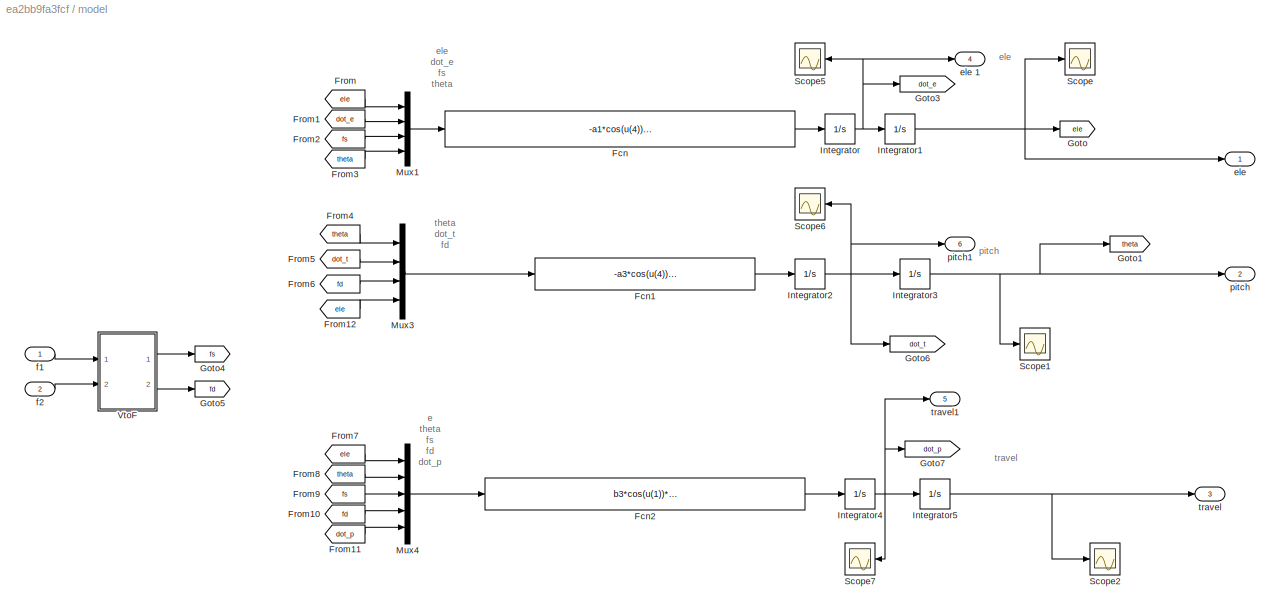
BLOCK [SubSystem] model
  Ports = [2, 6]
  RequestExecContextInheritance = off
BLOCK [Fcn] model/Fcn
  Expr = -a1*cos(u(4))*sin(u(1)) - a2*cos(u(1)) + b1*cos(u(4))*u(3) - ce*u(2)
BLOCK [Fcn] model/Fcn1
  Expr = -a3*cos(u(4))*sin(u(1)) + b2*u(3) - ct*u(2)
BLOCK [Fcn] model/Fcn2
  Expr = b3*cos(u(1))*sin(u(2))*u(3) - b4*sin(u(2))*sin(u(1))*u(4) - cp*u(5)
BLOCK [From] model/From
  GotoTag = ele
BLOCK [From] model/From1
  GotoTag = dot_e
BLOCK [From] model/From10
  GotoTag = fd
BLOCK [From] model/From11
  GotoTag = dot_p
BLOCK [From] model/From12
  GotoTag = ele
BLOCK [From] model/From2
  GotoTag = fs
BLOCK [From] model/From3
  GotoTag = theta
BLOCK [From] model/From4
  GotoTag = theta
BLOCK [From] model/From5
  GotoTag = dot_t
BLOCK [From] model/From6
  GotoTag = fd
BLOCK [From] model/From7
  GotoTag = ele
BLOCK [From] model/From8
  GotoTag = theta
BLOCK [From] model/From9
  GotoTag = fs
BLOCK [Goto] model/Goto
  GotoTag = ele
BLOCK [Goto] model/Goto1
  GotoTag = theta
BLOCK [Goto] model/Goto3
  GotoTag = dot_e
BLOCK [Goto] model/Goto4
  GotoTag = fs
BLOCK [Goto] model/Goto5
  GotoTag = fd
BLOCK [Goto] model/Goto6
  GotoTag = dot_t
BLOCK [Goto] model/Goto7
  GotoTag = dot_p
BLOCK [Integrator] model/Integrator
  Ports = [1, 1]
BLOCK [Integrator] model/Integrator1
  InitialCondition = -0.713
  Ports = [1, 1]
BLOCK [Integrator] model/Integrator2
  Ports = [1, 1]
BLOCK [Integrator] model/Integrator3
  Ports = [1, 1]
BLOCK [Integrator] model/Integrator4
  Ports = [1, 1]
BLOCK [Integrator] model/Integrator5
  Ports = [1, 1]
BLOCK [Mux] model/Mux1
  DisplayOption = bar
  Ports = [4, 1]
BLOCK [Mux] model/Mux3
  DisplayOption = bar
  Ports = [4, 1]
BLOCK [Mux] model/Mux4
  DisplayOption = bar
  Inputs = 5
  Ports = [5, 1]
BLOCK [Scope] model/Scope
  Floating = off
  NumInputPorts = 1
  Ports = [1]
  ScopeSpecificationString = Simulink.scopes.TimeScopeBlockCfg('CurrentConfiguration', extmgr.ConfigurationSet(extmgr.Configuration('Core','General UI',true),extmgr.Configuration('Core','Source UI',true),extmgr.Configuration('Sources','WiredSimulink',true,'DataLoggingVariableName','ScopeData24','DataLoggingSaveFormat','StructureWithTime','DataLoggingDecimation','1','DataLoggingDecimateData',true),extmgr.Configuration('Visuals...<+877ch>
BLOCK [Scope] model/Scope1
  Floating = off
  NumInputPorts = 1
  Ports = [1]
  ScopeSpecificationString = Simulink.scopes.TimeScopeBlockCfg('CurrentConfiguration', extmgr.ConfigurationSet(extmgr.Configuration('Core','General UI',true),extmgr.Configuration('Core','Source UI',true),extmgr.Configuration('Sources','WiredSimulink',true,'DataLoggingVariableName','ScopeData25','DataLoggingSaveFormat','StructureWithTime','DataLoggingDecimation','1','DataLoggingDecimateData',true),extmgr.Configuration('Visuals...<+877ch>
BLOCK [Scope] model/Scope2
  Floating = off
  NumInputPorts = 1
  Ports = [1]
  ScopeSpecificationString = Simulink.scopes.TimeScopeBlockCfg('CurrentConfiguration', extmgr.ConfigurationSet(extmgr.Configuration('Core','General UI',true),extmgr.Configuration('Core','Source UI',true),extmgr.Configuration('Sources','WiredSimulink',true,'DataLoggingVariableName','ScopeData26','DataLoggingSaveFormat','StructureWithTime','DataLoggingDecimation','1','DataLoggingDecimateData',true),extmgr.Configuration('Visuals...<+877ch>
BLOCK [Scope] model/Scope5
  Floating = off
  NumInputPorts = 1
  Ports = [1]
  ScopeSpecificationString = Simulink.scopes.TimeScopeBlockCfg('CurrentConfiguration', extmgr.ConfigurationSet(extmgr.Configuration('Core','General UI',true),extmgr.Configuration('Core','Source UI',true),extmgr.Configuration('Sources','WiredSimulink',true,'DataLoggingVariableName','ScopeData7','DataLoggingSaveFormat','StructureWithTime','DataLoggingDecimation','1','DataLoggingDecimateData',true),extmgr.Configuration('Visuals'...<+876ch>
BLOCK [Scope] model/Scope6
  Floating = off
  NumInputPorts = 1
  Ports = [1]
  ScopeSpecificationString = Simulink.scopes.TimeScopeBlockCfg('CurrentConfiguration', extmgr.ConfigurationSet(extmgr.Configuration('Core','General UI',true),extmgr.Configuration('Core','Source UI',true),extmgr.Configuration('Sources','WiredSimulink',true,'DataLoggingVariableName','ScopeData8','DataLoggingSaveFormat','StructureWithTime','DataLoggingDecimation','1','DataLoggingDecimateData',true),extmgr.Configuration('Visuals'...<+876ch>
BLOCK [Scope] model/Scope7
  Floating = off
  NumInputPorts = 1
  Ports = [1]
  ScopeSpecificationString = Simulink.scopes.TimeScopeBlockCfg('CurrentConfiguration', extmgr.ConfigurationSet(extmgr.Configuration('Core','General UI',true),extmgr.Configuration('Core','Source UI',true),extmgr.Configuration('Sources','WiredSimulink',true,'DataLoggingVariableName','ScopeData9','DataLoggingSaveFormat','StructureWithTime','DataLoggingDecimation','1','DataLoggingDecimateData',true),extmgr.Configuration('Visuals'...<+1652ch>
BLOCK [SubSystem] model/VtoF
  Ports = [2, 2]
  RequestExecContextInheritance = off
BLOCK [Sum] model/VtoF/Add
  IconShape = rectangular
  Ports = [2, 1]
BLOCK [Sum] model/VtoF/Add1
  IconShape = rectangular
  Inputs = +-
  Ports = [2, 1]
BLOCK [Outport] model/VtoF/Fd
  Port = 2
  VectorParamsAs1DForOutWhenUnconnected = off
BLOCK [Outport] model/VtoF/Fs
  VectorParamsAs1DForOutWhenUnconnected = off
BLOCK [Inport] model/VtoF/f1
BLOCK [Inport] model/VtoF/f2
  Port = 2
BLOCK [Outport] model/ele 
  VectorParamsAs1DForOutWhenUnconnected = off
BLOCK [Outport] model/ele 1
  Port = 4
  VectorParamsAs1DForOutWhenUnconnected = off
BLOCK [Inport] model/f1
BLOCK [Inport] model/f2
  Port = 2
BLOCK [Outport] model/pitch
  Port = 2
  VectorParamsAs1DForOutWhenUnconnected = off
BLOCK [Outport] model/pitch1
  Port = 6
  VectorParamsAs1DForOutWhenUnconnected = off
BLOCK [Outport] model/travel
  Port = 3
  VectorParamsAs1DForOutWhenUnconnected = off
BLOCK [Outport] model/travel1
  Port = 5
  VectorParamsAs1DForOutWhenUnconnected = off
BLOCK [Scope] scope9
  Floating = off
  NumInputPorts = 1
  Ports = [1]
  ScopeSpecificationString = Simulink.scopes.TimeScopeBlockCfg('CurrentConfiguration', extmgr.ConfigurationSet(extmgr.Configuration('Core','General UI',true),extmgr.Configuration('Core','Source UI',true),extmgr.Configuration('Sources','WiredSimulink',true,'DataLoggingVariableName','f21','DataLoggingSaveFormat','Array','DataLoggingDecimation','1','DataLoggingDecimateData',true),extmgr.Configuration('Visuals','Time Domain',true...<+1720ch>
ANNOTATION control/Controller_epsilon: Elevation
ANNOTATION control/Controller_epsilon/Controller_epsilon1: 角度误差
ANNOTATION control/Controller_epsilon/Controller_epsilon1: 角速度误差
ANNOTATION control/Controller_psi: Travel
ANNOTATION control/Controller_psi/Controller_travel: 角度误差
ANNOTATION control/Controller_psi/Controller_travel: 角速度误差
ANNOTATION control/Controller_theta: Travel
ANNOTATION control/Controller_theta: 仿真里保留/删掉低通滤波器，看一下大小参数UDE下的差异性 一阶低通带宽是2 UDE(小参数T=0.1)带宽是10 一阶低通会滤除掉UDE的2~10部分的估计信号
ANNOTATION control/Controller_theta/Controller_travel: 角度误差
ANNOTATION control/Controller_theta/Controller_travel: 角速度误差
ANNOTATION model: e theta fs fd dot_p
ANNOTATION model: ele
ANNOTATION model: ele dot_e fs theta
ANNOTATION model: pitch
ANNOTATION model: theta dot_t fd
ANNOTATION model: travel
LINE From10:1 -> control:2
LINE From8:1 -> control:1
LINE From9:1 -> control:3
LINE Mux1:1 -> Scope3:1
LINE Mux:1 -> scope9:1
LINE control/Clock1:1 -> control/calcu_fd:8
LINE control/Clock:1 -> control/fs__theta_d:5
LINE control/Constant10:1 -> control/calcu_fd:7
LINE control/Constant1:1 -> control/calcu_v1:6
LINE control/Constant2:1 -> control/calcu_v2:4
LINE control/Constant3:1 -> control/calcu_v1:7
LINE control/Constant4:1 -> control/calcu_v1:8
LINE control/Constant5:1 -> control/calcu_v2:3
LINE control/Constant8:1 -> control/calcu_fd:5
LINE control/Constant9:1 -> control/calcu_fd:6
LINE control/Constant:1 -> control/calcu_v1:5
NET control/Controller_epsilon/Add:1 -> control/Controller_epsilon/U_ele:1, control/Controller_epsilon/scope14:1
LINE control/Controller_epsilon/Classcial UDE/Add2:1 -> control/Controller_epsilon/Classcial UDE/Product:1
LINE control/Controller_epsilon/Classcial UDE/Integrator1:1 -> control/Controller_epsilon/Classcial UDE/Add2:2
LINE control/Controller_epsilon/Classcial UDE/Product:1 -> control/Controller_epsilon/Classcial UDE/d:1
LINE control/Controller_epsilon/Classcial UDE/T:1 -> control/Controller_epsilon/Classcial UDE/Product:2
LINE control/Controller_epsilon/Classcial UDE/dot_x:1 -> control/Controller_epsilon/Classcial UDE/Add2:1
LINE control/Controller_epsilon/Classcial UDE/u0:1 -> control/Controller_epsilon/Classcial UDE/Integrator1:1
NET control/Controller_epsilon/Classcial UDE:1 -> control/Controller_epsilon/Goto:1, control/Controller_epsilon/To Workspace1:1, control/Controller_epsilon/scope1:1
LINE control/Controller_epsilon/Constant:1 -> control/Controller_epsilon/Classcial UDE:3
LINE control/Controller_epsilon/Controller_epsilon1/Constant1:1 -> control/Controller_epsilon/Controller_epsilon1/Manual Switch:2
LINE control/Controller_epsilon/Controller_epsilon1/Integrator:1 -> control/Controller_epsilon/Controller_epsilon1/Mux:1
LINE control/Controller_epsilon/Controller_epsilon1/Manual Switch:1 -> control/Controller_epsilon/Controller_epsilon1/Sum1:2
LINE control/Controller_epsilon/Controller_epsilon1/Mux:1 -> control/Controller_epsilon/Controller_epsilon1/k_double_epsilon:1
NET control/Controller_epsilon/Controller_epsilon1/Sum1:1 -> control/Controller_epsilon/Controller_epsilon1/scope1:1, control/Controller_epsilon/Controller_epsilon1/u_ele:1
NET control/Controller_epsilon/Controller_epsilon1/Sum3:1 -> control/Controller_epsilon/Controller_epsilon1/Integrator:1, control/Controller_epsilon/Controller_epsilon1/Mux:2, control/Controller_epsilon/Controller_epsilon1/scope4:1
NET control/Controller_epsilon/Controller_epsilon1/Sum4:1 -> control/Controller_epsilon/Controller_epsilon1/Sum1:1, control/Controller_epsilon/Controller_epsilon1/scope6:1, control/Controller_epsilon/Controller_epsilon1/u0_ele:1
NET control/Controller_epsilon/Controller_epsilon1/Sum6:1 -> control/Controller_epsilon/Controller_epsilon1/Mux:3, control/Controller_epsilon/Controller_epsilon1/scope4:2
LINE control/Controller_epsilon/Controller_epsilon1/d_hat_epsilon:1 -> control/Controller_epsilon/Controller_epsilon1/Manual Switch:1
NET control/Controller_epsilon/Controller_epsilon1/ddot_epsilon_d:1 -> control/Controller_epsilon/Controller_epsilon1/Sum4:2, control/Controller_epsilon/Controller_epsilon1/scope4:3
NET control/Controller_epsilon/Controller_epsilon1/dot_epsilon:1 -> control/Controller_epsilon/Controller_epsilon1/Sum6:2, control/Controller_epsilon/Controller_epsilon1/scope3:1
LINE control/Controller_epsilon/Controller_epsilon1/dot_epsilon_d:1 -> control/Controller_epsilon/Controller_epsilon1/Sum6:1
NET control/Controller_epsilon/Controller_epsilon1/epsilon:1 -> control/Controller_epsilon/Controller_epsilon1/Sum3:2, control/Controller_epsilon/Controller_epsilon1/scope8:1
NET control/Controller_epsilon/Controller_epsilon1/epsilon_d:1 -> control/Controller_epsilon/Controller_epsilon1/Sum3:1, control/Controller_epsilon/Controller_epsilon1/scope9:1
LINE control/Controller_epsilon/Controller_epsilon1/k_double_epsilon:1 -> control/Controller_epsilon/Controller_epsilon1/Sum4:1
LINE control/Controller_epsilon/Controller_epsilon1:1 -> control/Controller_epsilon/Add:1
LINE control/Controller_epsilon/Controller_epsilon1:2 -> control/Controller_epsilon/Goto5:1
LINE control/Controller_epsilon/From1:1 -> control/Controller_epsilon/Controller_epsilon1:5
NET control/Controller_epsilon/From23:1 -> control/Controller_epsilon/Controller_epsilon1:4, control/Controller_epsilon/Mux5:2
LINE control/Controller_epsilon/From24:1 -> control/Controller_epsilon/Sum2:2
LINE control/Controller_epsilon/From2:1 -> control/Controller_epsilon/Classcial UDE:2
LINE control/Controller_epsilon/From31:1 -> control/Controller_epsilon/Controller_epsilon1:6
LINE control/Controller_epsilon/From6:1 -> control/Controller_epsilon/Sum2:1
LINE control/Controller_epsilon/From:1 -> control/Controller_epsilon/Classcial UDE:1
LINE control/Controller_epsilon/Integrator3:1 -> control/Controller_epsilon/Goto1:1
NET control/Controller_epsilon/Manual Switch:1 -> control/Controller_epsilon/Goto18:1, control/Controller_epsilon/dot_epsilon:1
NET control/Controller_epsilon/Mux5:1 -> control/Controller_epsilon/radtodeg2:1, control/Controller_epsilon/scope12:1
NET control/Controller_epsilon/Sine Wave:1 -> control/Controller_epsilon/Add:2, control/Controller_epsilon/scope1:2
NET control/Controller_epsilon/Sum2:1 -> control/Controller_epsilon/Integrator3:1, control/Controller_epsilon/To Workspace:1
LINE control/Controller_epsilon/Transfer Fcn:1 -> control/Controller_epsilon/Manual Switch:1
LINE control/Controller_epsilon/epsilon1:1 -> control/Controller_epsilon/Manual Switch:2
NET control/Controller_epsilon/epsilon:1 -> control/Controller_epsilon/Goto4:1, control/Controller_epsilon/Transfer Fcn:1
LINE control/Controller_epsilon/goal_ele/Constant4:1 -> control/Controller_epsilon/goal_ele/Quintic polynomial interpolation:1
LINE control/Controller_epsilon/goal_ele/Constant5:1 -> control/Controller_epsilon/goal_ele/Quintic polynomial interpolation:2
LINE control/Controller_epsilon/goal_ele/Constant7:1 -> control/Controller_epsilon/goal_ele/Quintic polynomial interpolation:3
LINE control/Controller_epsilon/goal_ele/Constant8:1 -> control/Controller_epsilon/goal_ele/Quintic polynomial interpolation:4
NET control/Controller_epsilon/goal_ele/Derivative1:1 -> control/Controller_epsilon/goal_ele/Scope2:1, control/Controller_epsilon/goal_ele/x1d_ddot:1
NET control/Controller_epsilon/goal_ele/Derivative:1 -> control/Controller_epsilon/goal_ele/Derivative1:1, control/Controller_epsilon/goal_ele/Scope1:1, control/Controller_epsilon/goal_ele/x1d_dot:1
LINE control/Controller_epsilon/goal_ele/Quintic polynomial interpolation/Add1:1 -> control/Controller_epsilon/goal_ele/Quintic polynomial interpolation/ddot_err:1
LINE control/Controller_epsilon/goal_ele/Quintic polynomial interpolation/Add:1 -> control/Controller_epsilon/goal_ele/Quintic polynomial interpolation/dot_err:1
LINE control/Controller_epsilon/goal_ele/Quintic polynomial interpolation/Clock:1 -> control/Controller_epsilon/goal_ele/Quintic polynomial interpolation/MATLAB Function:1
NET control/Controller_epsilon/goal_ele/Quintic polynomial interpolation/Derivative1:1 -> control/Controller_epsilon/goal_ele/Quintic polynomial interpolation/Add1:1, control/Controller_epsilon/goal_ele/Quintic polynomial interpolation/dot_err2:1
NET control/Controller_epsilon/goal_ele/Quintic polynomial interpolation/Derivative:1 -> control/Controller_epsilon/goal_ele/Quintic polynomial interpolation/Add:1, control/Controller_epsilon/goal_ele/Quintic polynomial interpolation/Derivative1:1, control/Controller_epsilon/goal_ele/Quintic polynomial interpolation/dot_err1:1
NET control/Controller_epsilon/goal_ele/Quintic polynomial interpolation/MATLAB Function:1 -> control/Controller_epsilon/goal_ele/Quintic polynomial interpolation/Derivative:1, control/Controller_epsilon/goal_ele/Quintic polynomial interpolation/Scope:1, control/Controller_epsilon/goal_ele/Quintic polynomial interpolation/py:1
NET control/Controller_epsilon/goal_ele/Quintic polynomial interpolation/MATLAB Function:2 -> control/Controller_epsilon/goal_ele/Quintic polynomial interpolation/Add:2, control/Controller_epsilon/goal_ele/Quintic polynomial interpolation/Scope1:1, control/Controller_epsilon/goal_ele/Quintic polynomial interpolation/vy:1
NET control/Controller_epsilon/goal_ele/Quintic polynomial interpolation/MATLAB Function:3 -> control/Controller_epsilon/goal_ele/Quintic polynomial interpolation/Add1:2, control/Controller_epsilon/goal_ele/Quintic polynomial interpolation/Scope2:1, control/Controller_epsilon/goal_ele/Quintic polynomial interpolation/ay:1
LINE control/Controller_epsilon/goal_ele/Quintic polynomial interpolation/t1:1 -> control/Controller_epsilon/goal_ele/Quintic polynomial interpolation/MATLAB Function:4
LINE control/Controller_epsilon/goal_ele/Quintic polynomial interpolation/t2:1 -> control/Controller_epsilon/goal_ele/Quintic polynomial interpolation/MATLAB Function:5
LINE control/Controller_epsilon/goal_ele/Quintic polynomial interpolation/y0:1 -> control/Controller_epsilon/goal_ele/Quintic polynomial interpolation/MATLAB Function:2
LINE control/Controller_epsilon/goal_ele/Quintic polynomial interpolation/yd:1 -> control/Controller_epsilon/goal_ele/Quintic polynomial interpolation/MATLAB Function:3
NET control/Controller_epsilon/goal_ele/Sine Wave:1 -> control/Controller_epsilon/goal_ele/Derivative:1, control/Controller_epsilon/goal_ele/Scope:1, control/Controller_epsilon/goal_ele/To Workspace:1, control/Controller_epsilon/goal_ele/x1d:1
NET control/Controller_epsilon/goal_ele:1 -> control/Controller_epsilon/Controller_epsilon1:1, control/Controller_epsilon/Goto2:1, control/Controller_epsilon/Mux5:1
NET control/Controller_epsilon/goal_ele:2 -> control/Controller_epsilon/Controller_epsilon1:2, control/Controller_epsilon/Goto3:1
LINE control/Controller_epsilon/goal_ele:3 -> control/Controller_epsilon/Controller_epsilon1:3
LINE control/Controller_epsilon/radtodeg2:1 -> control/Controller_epsilon/scope9:1
NET control/Controller_epsilon:1 -> control/Goto1:1, control/To Workspace:1, control/scope5:1
NET control/Controller_epsilon:2 -> control/Goto2:1, control/scope5:2
NET control/Controller_psi/Add:1 -> control/Controller_psi/U_psi:1, control/Controller_psi/scope14:1
LINE control/Controller_psi/Classcial UDE/Add2:1 -> control/Controller_psi/Classcial UDE/Product:1
LINE control/Controller_psi/Classcial UDE/Integrator1:1 -> control/Controller_psi/Classcial UDE/Add2:2
LINE control/Controller_psi/Classcial UDE/Product:1 -> control/Controller_psi/Classcial UDE/d:1
LINE control/Controller_psi/Classcial UDE/T:1 -> control/Controller_psi/Classcial UDE/Product:2
LINE control/Controller_psi/Classcial UDE/dot_x:1 -> control/Controller_psi/Classcial UDE/Add2:1
LINE control/Controller_psi/Classcial UDE/u0:1 -> control/Controller_psi/Classcial UDE/Integrator1:1
NET control/Controller_psi/Classcial UDE:1 -> control/Controller_psi/Goto:1, control/Controller_psi/To Workspace1:1
LINE control/Controller_psi/Constant:1 -> control/Controller_psi/Classcial UDE:3
LINE control/Controller_psi/Controller_travel/Constant1:1 -> control/Controller_psi/Controller_travel/Manual Switch:1
LINE control/Controller_psi/Controller_travel/Integrator:1 -> control/Controller_psi/Controller_travel/Mux:1
LINE control/Controller_psi/Controller_travel/Manual Switch:1 -> control/Controller_psi/Controller_travel/Sum1:2
LINE control/Controller_psi/Controller_travel/Mux:1 -> control/Controller_psi/Controller_travel/k_double_psi:1
NET control/Controller_psi/Controller_travel/Sum1:1 -> control/Controller_psi/Controller_travel/scope1:1, control/Controller_psi/Controller_travel/u_psi:1
NET control/Controller_psi/Controller_travel/Sum3:1 -> control/Controller_psi/Controller_travel/Integrator:1, control/Controller_psi/Controller_travel/Mux:2, control/Controller_psi/Controller_travel/scope4:1
NET control/Controller_psi/Controller_travel/Sum4:1 -> control/Controller_psi/Controller_travel/Sum1:1, control/Controller_psi/Controller_travel/scope6:1, control/Controller_psi/Controller_travel/u0_psi:1
NET control/Controller_psi/Controller_travel/Sum6:1 -> control/Controller_psi/Controller_travel/Mux:3, control/Controller_psi/Controller_travel/scope4:2
LINE control/Controller_psi/Controller_travel/d_hat_psi:1 -> control/Controller_psi/Controller_travel/Manual Switch:2
NET control/Controller_psi/Controller_travel/ddot_psi_d:1 -> control/Controller_psi/Controller_travel/Sum4:2, control/Controller_psi/Controller_travel/scope4:3
NET control/Controller_psi/Controller_travel/dot_psi:1 -> control/Controller_psi/Controller_travel/Sum6:2, control/Controller_psi/Controller_travel/scope3:1
LINE control/Controller_psi/Controller_travel/dot_psi_d:1 -> control/Controller_psi/Controller_travel/Sum6:1
LINE control/Controller_psi/Controller_travel/k_double_psi:1 -> control/Controller_psi/Controller_travel/Sum4:1
NET control/Controller_psi/Controller_travel/psi:1 -> control/Controller_psi/Controller_travel/Sum3:2, control/Controller_psi/Controller_travel/scope8:1
NET control/Controller_psi/Controller_travel/psi_d:1 -> control/Controller_psi/Controller_travel/Sum3:1, control/Controller_psi/Controller_travel/scope9:1
LINE control/Controller_psi/Controller_travel:1 -> control/Controller_psi/Add:2
LINE control/Controller_psi/Controller_travel:2 -> control/Controller_psi/Goto5:1
LINE control/Controller_psi/From1:1 -> control/Controller_psi/Controller_travel:5
NET control/Controller_psi/From23:1 -> control/Controller_psi/Controller_travel:4, control/Controller_psi/Mux5:2
LINE control/Controller_psi/From24:1 -> control/Controller_psi/Sum2:2
LINE control/Controller_psi/From2:1 -> control/Controller_psi/Classcial UDE:2
LINE control/Controller_psi/From31:1 -> control/Controller_psi/Controller_travel:6
LINE control/Controller_psi/From6:1 -> control/Controller_psi/Sum2:1
LINE control/Controller_psi/From:1 -> control/Controller_psi/Classcial UDE:1
LINE control/Controller_psi/Integrator3:1 -> control/Controller_psi/Goto1:1
NET control/Controller_psi/Manual Switch:1 -> control/Controller_psi/Goto18:1, control/Controller_psi/dot_psi:1
NET control/Controller_psi/Mux5:1 -> control/Controller_psi/radtodeg2:1, control/Controller_psi/scope12:1
LINE control/Controller_psi/Sine Wave:1 -> control/Controller_psi/Add:1
NET control/Controller_psi/Sum2:1 -> control/Controller_psi/Integrator3:1, control/Controller_psi/To Workspace:1
LINE control/Controller_psi/Transfer Fcn:1 -> control/Controller_psi/Manual Switch:1
LINE control/Controller_psi/generate_curve/Clock:1 -> control/Controller_psi/generate_curve/MATLAB Function:1
LINE control/Controller_psi/generate_curve/Constant1:1 -> control/Controller_psi/generate_curve/ddot_signal:1
NET control/Controller_psi/generate_curve/MATLAB Function:1 -> control/Controller_psi/generate_curve/To Workspace:1, control/Controller_psi/generate_curve/signal:1
LINE control/Controller_psi/generate_curve/MATLAB Function:2 -> control/Controller_psi/generate_curve/dot_signal:1
NET control/Controller_psi/generate_curve:1 -> control/Controller_psi/Controller_travel:1, control/Controller_psi/Goto2:1, control/Controller_psi/Mux5:1
NET control/Controller_psi/generate_curve:2 -> control/Controller_psi/Controller_travel:2, control/Controller_psi/Goto3:1
LINE control/Controller_psi/generate_curve:3 -> control/Controller_psi/Controller_travel:3
LINE control/Controller_psi/psi1:1 -> control/Controller_psi/Manual Switch:2
NET control/Controller_psi/psi:1 -> control/Controller_psi/Goto4:1, control/Controller_psi/Transfer Fcn:1
LINE control/Controller_psi/radtodeg2:1 -> control/Controller_psi/scope9:1
NET control/Controller_psi:1 -> control/Goto3:1, control/To Workspace1:1, control/scope8:1
NET control/Controller_psi:2 -> control/Goto13:1, control/scope8:2
NET control/Controller_theta/1st-Order  Filter1:1 -> control/Controller_theta/Sum1:2, control/Controller_theta/To Workspace1:1, control/Controller_theta/goal_pitch:1
NET control/Controller_theta/Add:1 -> control/Controller_theta/U_theta:1, control/Controller_theta/scope14:1
LINE control/Controller_theta/Classcial UDE/Add2:1 -> control/Controller_theta/Classcial UDE/Product:1
LINE control/Controller_theta/Classcial UDE/Integrator1:1 -> control/Controller_theta/Classcial UDE/Add2:2
LINE control/Controller_theta/Classcial UDE/Product:1 -> control/Controller_theta/Classcial UDE/d:1
LINE control/Controller_theta/Classcial UDE/T:1 -> control/Controller_theta/Classcial UDE/Product:2
LINE control/Controller_theta/Classcial UDE/dot_x:1 -> control/Controller_theta/Classcial UDE/Add2:1
LINE control/Controller_theta/Classcial UDE/u0:1 -> control/Controller_theta/Classcial UDE/Integrator1:1
NET control/Controller_theta/Classcial UDE:1 -> control/Controller_theta/Goto:1, control/Controller_theta/Scope:1, control/Controller_theta/To Workspace2:1
LINE control/Controller_theta/Constant:1 -> control/Controller_theta/Classcial UDE:3
LINE control/Controller_theta/Controller_travel/Constant1:1 -> control/Controller_theta/Controller_travel/Manual Switch:1
LINE control/Controller_theta/Controller_travel/Integrator:1 -> control/Controller_theta/Controller_travel/Mux:1
LINE control/Controller_theta/Controller_travel/Manual Switch:1 -> control/Controller_theta/Controller_travel/Sum1:2
LINE control/Controller_theta/Controller_travel/Mux:1 -> control/Controller_theta/Controller_travel/k_double_theta:1
NET control/Controller_theta/Controller_travel/Sum1:1 -> control/Controller_theta/Controller_travel/scope1:1, control/Controller_theta/Controller_travel/u_theta:1
NET control/Controller_theta/Controller_travel/Sum3:1 -> control/Controller_theta/Controller_travel/Integrator:1, control/Controller_theta/Controller_travel/Mux:2, control/Controller_theta/Controller_travel/scope4:1
NET control/Controller_theta/Controller_travel/Sum4:1 -> control/Controller_theta/Controller_travel/Sum1:1, control/Controller_theta/Controller_travel/scope6:1, control/Controller_theta/Controller_travel/u0_theta:1
NET control/Controller_theta/Controller_travel/Sum6:1 -> control/Controller_theta/Controller_travel/Mux:3, control/Controller_theta/Controller_travel/scope4:2
LINE control/Controller_theta/Controller_travel/d_hat_theta:1 -> control/Controller_theta/Controller_travel/Manual Switch:2
NET control/Controller_theta/Controller_travel/ddot_theta_d:1 -> control/Controller_theta/Controller_travel/Sum4:2, control/Controller_theta/Controller_travel/scope4:3
NET control/Controller_theta/Controller_travel/dot_theta:1 -> control/Controller_theta/Controller_travel/Sum6:2, control/Controller_theta/Controller_travel/scope3:1
LINE control/Controller_theta/Controller_travel/dot_theta_d:1 -> control/Controller_theta/Controller_travel/Sum6:1
LINE control/Controller_theta/Controller_travel/k_double_theta:1 -> control/Controller_theta/Controller_travel/Sum4:1
NET control/Controller_theta/Controller_travel/theta:1 -> control/Controller_theta/Controller_travel/Sum3:2, control/Controller_theta/Controller_travel/scope8:1
NET control/Controller_theta/Controller_travel/theta_d:1 -> control/Controller_theta/Controller_travel/Sum3:1, control/Controller_theta/Controller_travel/scope9:1
LINE control/Controller_theta/Controller_travel:1 -> control/Controller_theta/Add:2
LINE control/Controller_theta/Controller_travel:2 -> control/Controller_theta/Goto5:1
LINE control/Controller_theta/From1:1 -> control/Controller_theta/Controller_travel:5
NET control/Controller_theta/From23:1 -> control/Controller_theta/Controller_travel:4, control/Controller_theta/Mux5:2
LINE control/Controller_theta/From24:1 -> control/Controller_theta/Sum2:2
LINE control/Controller_theta/From2:1 -> control/Controller_theta/Classcial UDE:1
LINE control/Controller_theta/From31:1 -> control/Controller_theta/Controller_travel:6
NET control/Controller_theta/From6:1 -> control/Controller_theta/Sum1:1, control/Controller_theta/Sum2:1
LINE control/Controller_theta/From:1 -> control/Controller_theta/Classcial UDE:2
LINE control/Controller_theta/Integrator3:1 -> control/Controller_theta/Goto1:1
NET control/Controller_theta/Manual Switch:1 -> control/Controller_theta/Goto18:1, control/Controller_theta/dot_theta:1, control/Controller_theta/scope1:1
NET control/Controller_theta/Mux5:1 -> control/Controller_theta/radtodeg2:1, control/Controller_theta/scope12:1
LINE control/Controller_theta/Sine Wave:1 -> control/Controller_theta/Add:1
NET control/Controller_theta/Sum1:1 -> control/Controller_theta/To Workspace:1, control/Controller_theta/scope4:1
LINE control/Controller_theta/Sum2:1 -> control/Controller_theta/Integrator3:1
LINE control/Controller_theta/Transfer Fcn:1 -> control/Controller_theta/Manual Switch:1
NET control/Controller_theta/goal_pitch/Transfer Fcn1:1 -> control/Controller_theta/goal_pitch/Transfer Fcn2:1, control/Controller_theta/goal_pitch/x1d_dot:1
LINE control/Controller_theta/goal_pitch/Transfer Fcn2:1 -> control/Controller_theta/goal_pitch/x1d_ddot:1
NET control/Controller_theta/goal_pitch/xd:1 -> control/Controller_theta/goal_pitch/Transfer Fcn1:1, control/Controller_theta/goal_pitch/scope1:1, control/Controller_theta/goal_pitch/x1d:1
NET control/Controller_theta/goal_pitch:1 -> control/Controller_theta/Controller_travel:1, control/Controller_theta/Goto2:1, control/Controller_theta/Mux5:1
NET control/Controller_theta/goal_pitch:2 -> control/Controller_theta/Controller_travel:2, control/Controller_theta/Goto3:1
LINE control/Controller_theta/goal_pitch:3 -> control/Controller_theta/Controller_travel:3
LINE control/Controller_theta/radtodeg2:1 -> control/Controller_theta/scope9:1
LINE control/Controller_theta/theta1:1 -> control/Controller_theta/Manual Switch:2
NET control/Controller_theta/theta:1 -> control/Controller_theta/Goto4:1, control/Controller_theta/Transfer Fcn:1
LINE control/Controller_theta/theta_d:1 -> control/Controller_theta/1st-Order  Filter1:1
NET control/Controller_theta:1 -> control/Goto12:1, control/To Workspace2:1, control/scope4:1
NET control/Controller_theta:2 -> control/Goto7:1, control/scope4:2
LINE control/From12:1 -> control/calcu_v2:1
LINE control/From14:1 -> control/calcu_v2:2
LINE control/From15:1 -> control/fs__theta_d:1
LINE control/From16:1 -> control/fs__theta_d:2
LINE control/From17:1 -> control/fs__theta_d:3
LINE control/From18:1 -> control/calcu_fd:1
LINE control/From19:1 -> control/calcu_fd:2
NET control/From1:1 -> control/Mux3:2, control/Sum1:2, control/Sum:2
LINE control/From20:1 -> control/calcu_fd:3
LINE control/From21:1 -> control/calcu_fd:4
LINE control/From23:1 -> control/Controller_psi:1
LINE control/From2:1 -> control/calcu_v1:2
LINE control/From3:1 -> control/calcu_v1:1
LINE control/From4:1 -> control/Controller_theta:2
LINE control/From5:1 -> control/fs__theta_d:4
LINE control/From6:1 -> control/Controller_epsilon:1
LINE control/From7:1 -> control/Controller_theta:1
LINE control/From8:1 -> control/calcu_v1:3
LINE control/From9:1 -> control/calcu_v1:4
NET control/From:1 -> control/Mux3:1, control/Sum1:1, control/Sum:1
LINE control/Gain1:1 -> control/f2:1
LINE control/Gain:1 -> control/f1:1
LINE control/Mux3:1 -> control/scope11:1
LINE control/Sum1:1 -> control/Gain1:1
LINE control/Sum:1 -> control/Gain:1
LINE control/calcu_fd:1 -> control/Goto14:1
NET control/calcu_v1:1 -> control/Goto8:1, control/scope1:1
NET control/calcu_v2:1 -> control/Goto9:1, control/scope2:1
LINE control/calcu_v2:2 -> control/scope3:1
LINE control/ele1:1 -> control/Controller_epsilon:2
LINE control/ele:1 -> control/Goto4:1
LINE control/fs__theta_d:1 -> control/Goto10:1
NET control/fs__theta_d:2 -> control/Goto11:1, control/scope10:1
LINE control/psi1:1 -> control/Controller_psi:2
LINE control/psi:1 -> control/Goto6:1
LINE control/theta1:1 -> control/Controller_theta:3
LINE control/theta:1 -> control/Goto5:1
NET control:1 -> Mux:1, model:1
NET control:2 -> Mux:2, model:2
LINE model/Fcn1:1 -> model/Integrator2:1
LINE model/Fcn2:1 -> model/Integrator4:1
LINE model/Fcn:1 -> model/Integrator:1
LINE model/From10:1 -> model/Mux4:4
LINE model/From11:1 -> model/Mux4:5
LINE model/From12:1 -> model/Mux3:4
LINE model/From1:1 -> model/Mux1:2
LINE model/From2:1 -> model/Mux1:3
LINE model/From3:1 -> model/Mux1:4
LINE model/From4:1 -> model/Mux3:1
LINE model/From5:1 -> model/Mux3:2
LINE model/From6:1 -> model/Mux3:3
LINE model/From7:1 -> model/Mux4:1
LINE model/From8:1 -> model/Mux4:2
LINE model/From9:1 -> model/Mux4:3
LINE model/From:1 -> model/Mux1:1
NET model/Integrator1:1 -> model/Goto:1, model/Scope:1, model/ele :1
NET model/Integrator2:1 -> model/Goto6:1, model/Integrator3:1, model/Scope6:1, model/pitch1:1
NET model/Integrator3:1 -> model/Goto1:1, model/Scope1:1, model/pitch:1
NET model/Integrator4:1 -> model/Goto7:1, model/Integrator5:1, model/Scope7:1, model/travel1:1
NET model/Integrator5:1 -> model/Scope2:1, model/travel:1
NET model/Integrator:1 -> model/Goto3:1, model/Integrator1:1, model/Scope5:1, model/ele 1:1
LINE model/Mux1:1 -> model/Fcn:1
LINE model/Mux3:1 -> model/Fcn1:1
LINE model/Mux4:1 -> model/Fcn2:1
LINE model/VtoF/Add1:1 -> model/VtoF/Fd:1
LINE model/VtoF/Add:1 -> model/VtoF/Fs:1
NET model/VtoF/f1:1 -> model/VtoF/Add1:1, model/VtoF/Add:1
NET model/VtoF/f2:1 -> model/VtoF/Add1:2, model/VtoF/Add:2
LINE model/VtoF:1 -> model/Goto4:1
LINE model/VtoF:2 -> model/Goto5:1
LINE model/f1:1 -> model/VtoF:1
LINE model/f2:1 -> model/VtoF:2
NET model:1 -> Goto7:1, Mux1:1, To Workspace:1
NET model:2 -> Goto9:1, Mux1:2, To Workspace1:1
NET model:3 -> Goto8:1, Mux1:3, To Workspace2:1
LINE model:4 -> control:4
LINE model:5 -> control:5
LINE model:6 -> control:6
note: NET lines group one-source signal fan-out (src -> all destinations, sorted); 1:1 wires keep LINE
CHART control/calcu_v1 states=1 transitions=1
  STATE_LABEL 'eML_blk_kernel()'
  STATE_LABEL 'SCRIPT:\nfunction v1 = fcn(theta ,ele ,dot_e,U_ele   ,a1,a2,b1,ce)\n%#codegen\nH1 = -a1*cos(theta)*sin(ele)-a2*cos(ele)-ce*dot_e;\nv1 = (U_ele-H1)/b1;\n'
CHART control/Controller_psi/generate_curve/MATLAB Function states=1 transitions=1
  STATE_LABEL 'eML_blk_kernel()'
  STATE_LABEL 'SCRIPT:\nfunction [p,v]= fcn(t)\n    if t <= 10\n        p = 0;\n        v = 0;\n    else\n        if t<=35\n            p = 2*pi/25*(t-10);\n            v = 2*pi/25;\n        else\n            p = 2*pi;\n            v = 0;\n        end\n    end\nend\n\n'
CHART control/calcu_v2 states=1 transitions=1
  STATE_LABEL 'eML_blk_kernel()'
  STATE_LABEL 'SCRIPT:\nfunction [v2,H3] = fcn(dot_p,U_psi,b3,cp)\n%#fd is the diff_force of last time\n% H3 = -b4*sin(theta)*sin(ele)*fd - cp*dot_p;\nH3 = - cp*dot_p;\nv2 = (U_psi-H3) /b3;\n'
CHART control/fs__theta_d states=1 transitions=1
  STATE_LABEL 'eML_blk_kernel()'
  STATE_LABEL 'SCRIPT:\nfunction [fs,theta_d] = fcn(v1,v2,ele,theta,t)\n%7秒前仅有升降通道，俯仰及偏航不起作用\n% if t>8\nif t>0\nfs = sqrt( v1^2 + (v2/cos(ele))^2 );\ntheta_d = atan( v2/(cos(ele)*v1) ); %rad\n\nelse\n    fs = v1/cos(theta);\n    theta_d = 0;\nend'
CHART control/calcu_fd states=1 transitions=1
  STATE_LABEL 'eML_blk_kernel()'
  STATE_LABEL 'SCRIPT:\nfunction fd = fcn(theta ,ele ,dot_t,U_theta,a3,b2,ct,t)\n%#codegen\n\n% if t>8\nif t>0\nH2 = -a3*cos(ele)*sin(theta)-ct*dot_t;\nfd = (U_theta-H2)/b2;\n\nelse\n    fd = 0;\nend\n'
CHART control/Controller_epsilon/goal_ele/Quintic polynomial interpolation/MATLAB Function states=1 transitions=1
  STATE_LABEL 'eML_blk_kernel()'
  STATE_LABEL 'SCRIPT:\nfunction [y, dot_y, ddot_y] = fcn(t, T1, T2, t1, t2)\n    a0 = T1;  % y(t1) \n    a1 = 0;  % dot_y(t1)\n    a2 = 0;  % ddot_y(t1)/2\n    a3 = 20*(T2-T1) / (2*(t2-t1)^3); \n    a4 = 30*(T1-T2) / (2*(t2-t1)^4);  \n    a5 = 12*(T2-T1) / (2*(t2-t1)^5);\n\n    u = t - t1;\n    if u <= 0\n        y = T1;\n        dot_y = 0;\n        ddot_y = 0;\n    elseif u>0&&u<=(t2-t1)\n        y = a0 + a1*u + a2*u^2 + a3*...<+218ch>'
CHART  states=0 transitions=0
CHART  states=0 transitions=0
CHART  states=0 transitions=0
CHART  states=0 transitions=0
CHART  states=0 transitions=0
CHART  states=0 transitions=0
